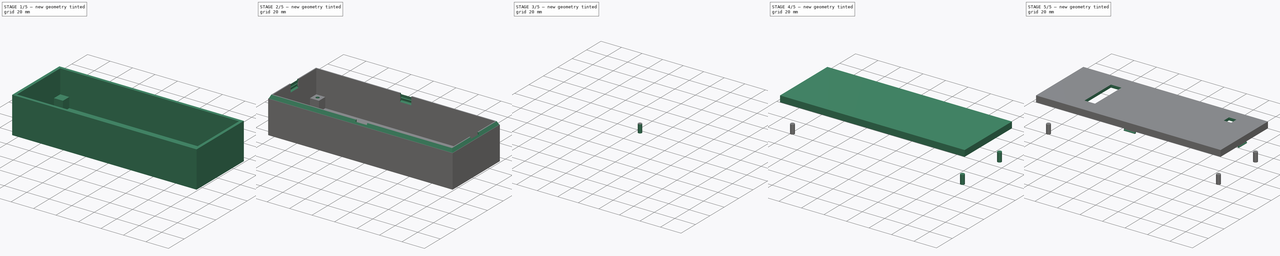
[diagram: build sequence overview — one tinted view per stage of 5, left to right]
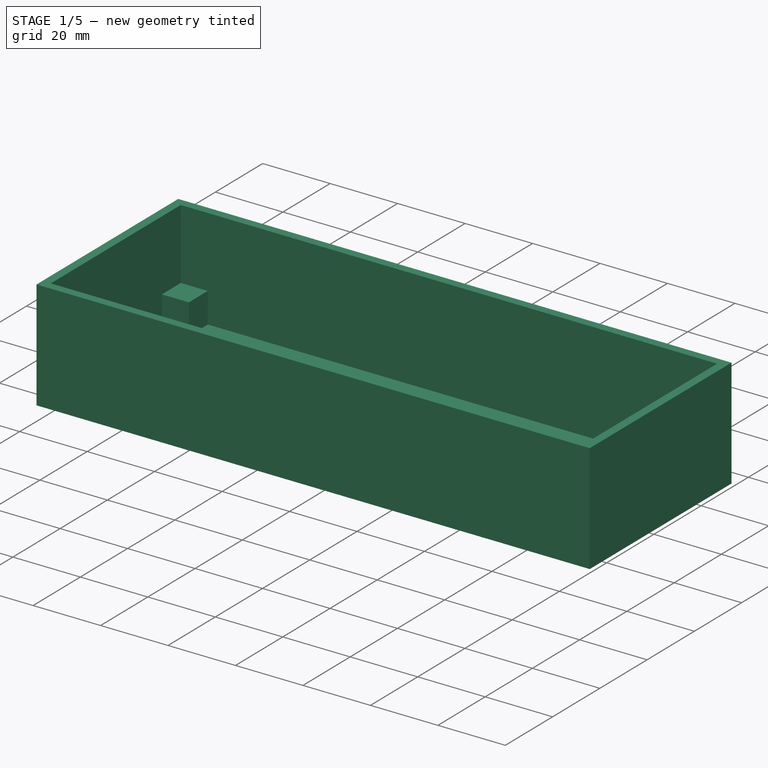
[diagram: stage 1 of 5 — iso view after this stage's code; geometry added in this stage tinted green]
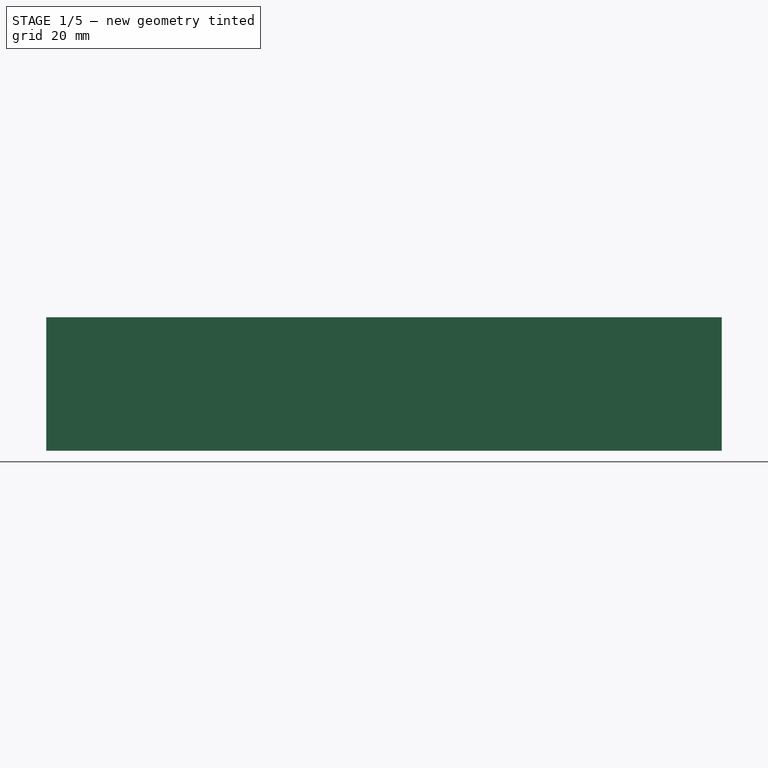
[diagram: stage 1 of 5 — front view after this stage's code; geometry added in this stage tinted green]
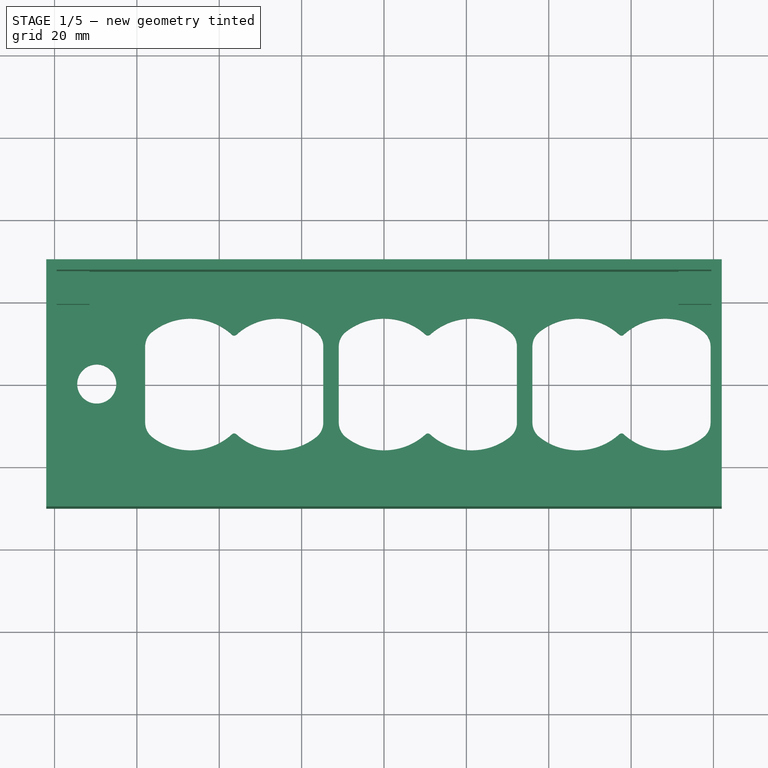
[diagram: stage 1 of 5 — top view after this stage's code; geometry added in this stage tinted green]
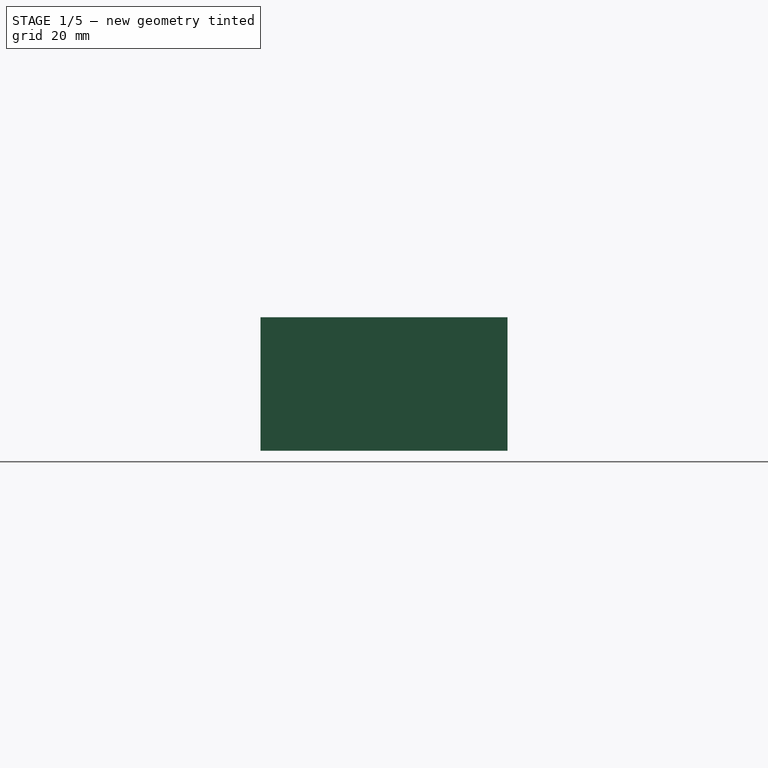
[diagram: stage 1 of 5 — right view after this stage's code; geometry added in this stage tinted green]
FCSTD DOCUMENT  (FreeCAD 0.20R29410 (Git))
Label: advance_case5
License: All rights reserved
LicenseURL: http://en.wikipedia.org/wiki/All_rights_reserved
objects: Sketcher::SketchObject×16, PartDesign::Pocket×10, PartDesign::ShapeBinder×7, PartDesign::Pad×6, Part::FeaturePython×4, PartDesign::Body×2, Part::Feature×1, PartDesign::Plane×1, PartDesign::Fillet×1
note: 65 computed .brp shape members not serialized (recipe doc carries the construction recipe); baked Part::Feature solids carry a one-line shape summary decoded from their .brp

FEATURE [Part::Feature] Feature  label="clock_top"
  shape: bbox 158.1 x 54.08 x 55.5 mm, 23897 faces, 830 solids (baked)
FEATURE [PartDesign::ShapeBinder] ShapeBinder
  Support = -> [Feature]
  TraceSupport = false
FEATURE [PartDesign::ShapeBinder] ShapeBinder001
  Support = -> [Feature]
  TraceSupport = false
FEATURE [PartDesign::ShapeBinder] ShapeBinder002
  Support = -> [Feature]
  TraceSupport = false
FEATURE [Sketcher::SketchObject] Sketch
  ExternalGeometry = -> [ShapeBinder001]
  FullyConstrained = true
  MapMode = 5
  Placement = pos=(0,0,0) rot=(1,0,0;3.14159rad)
  Support = -> [ShapeBinder]
  sketch-geometry (8):
    g0: LineSegment StartX=-79.5 StartY=27.5 StartZ=0 EndX=79.5 EndY=27.5 EndZ=0
    g1: LineSegment StartX=79.5 StartY=27.5 StartZ=0 EndX=79.5 EndY=-27.5 EndZ=0
    g2: LineSegment StartX=79.5 StartY=-27.5 StartZ=0 EndX=-79.5 EndY=-27.5 EndZ=0
    g3: LineSegment StartX=-79.5 StartY=-27.5 StartZ=0 EndX=-79.5 EndY=27.5 EndZ=0
    g4: LineSegment StartX=-82 StartY=30 StartZ=0 EndX=82 EndY=30 EndZ=0
    g5: LineSegment StartX=82 StartY=30 StartZ=0 EndX=82 EndY=-30 EndZ=0
    g6: LineSegment StartX=82 StartY=-30 StartZ=0 EndX=-82 EndY=-30 EndZ=0
    g7: LineSegment StartX=-82 StartY=-30 StartZ=0 EndX=-82 EndY=30 EndZ=0
  constraints (24):
    c: Coincident(g0,g1)
    c: Coincident(g1,g2)
    c: Coincident(g2,g3)
    c: Coincident(g3,g0)
    c: Horizontal(g0)
    c: Horizontal(g2)
    c: Vertical(g1)
    c: Vertical(g3)
    c: Coincident(g4,g5)
    c: Coincident(g5,g6)
    c: Coincident(g6,g7)
    c: Coincident(g7,g4)
    c: Horizontal(g4)
    c: Horizontal(g6)
    c: Vertical(g5)
    c: Vertical(g7)
    c: DistanceX(g0,g-6) = 0.5
    c: DistanceY(g-6,g0) = 0.5
    c: DistanceY(g1,g-4) = 0.5
    c: DistanceX(g-4,g1) = 0.5
    c: DistanceX(g1,g5) = 2.5
    c: DistanceY(g5,g1) = 2.5
    c: DistanceY(g0,g4) = 2.5
    c: DistanceX(g4,g0) = 2.5
FEATURE [PartDesign::Pad] Pad
  Direction = (0,0,-1)
  Length = 9
  Length2 = 20.89
  Profile = -> Sketch
  ReferenceAxis = -> Sketch [N_Axis]
  Type = 4
FEATURE [Sketcher::SketchObject] Sketch001
  ExternalGeometry = -> [Pad]
  FullyConstrained = true
  MapMode = 5
  Placement = pos=(0,0,-9) rot=(1,0,0;3.14159rad)
  Support = -> [Pad]
  sketch-geometry (4):
    g0: LineSegment StartX=-82 StartY=30 StartZ=0 EndX=82 EndY=30 EndZ=0
    g1: LineSegment StartX=82 StartY=30 StartZ=0 EndX=82 EndY=-30 EndZ=0
    g2: LineSegment StartX=82 StartY=-30 StartZ=0 EndX=-82 EndY=-30 EndZ=0
    g3: LineSegment StartX=-82 StartY=-30 StartZ=0 EndX=-82 EndY=30 EndZ=0
  constraints (10):
    c: Coincident(g0,g1)
    c: Coincident(g1,g2)
    c: Coincident(g2,g3)
    c: Coincident(g3,g0)
    c: Horizontal(g0)
    c: Horizontal(g2)
    c: Vertical(g1)
    c: Vertical(g3)
    c: Coincident(g0,g-3)
    c: Coincident(g1,g-4)
FEATURE [PartDesign::Pad] Pad001
  BaseFeature = -> Pad
  Direction = (0,0,-1)
  Length = 2.5
  Length2 = 10
  Profile = -> Sketch001
  ReferenceAxis = -> Sketch001 [N_Axis]
  Type = 0
FEATURE [Sketcher::SketchObject] Sketch002
  ExternalGeometry = -> [ShapeBinder002]
  FullyConstrained = false
  MapMode = 5
  Placement = pos=(0,0,-11.5) rot=(1,0,0;3.14159rad)
  Support = -> [Pad001]
  sketch-geometry (37):
    g0: LineSegment StartX=-58 StartY=9.12121 StartZ=0 EndX=-58 EndY=-9.37121 EndZ=0
    g1: ArcOfCircle CenterX=-53.5 CenterY=9.12121 CenterZ=0 NormalX=0 NormalY=0 NormalZ=1 AngleXU=0 Radius=4.5 StartAngle=2.23833 EndAngle=3.14159
    g2: ArcOfCircle CenterX=-47 CenterY=0.875 CenterZ=0 NormalX=0 NormalY=0 NormalZ=1 AngleXU=0 Radius=15 StartAngle=0.83283 EndAngle=2.23833
    g3: LineSegment StartX=-14.74 StartY=-9.37121 StartZ=0 EndX=-14.74 EndY=9.12121 EndZ=0
    g4: ArcOfCircle CenterX=-19.24 CenterY=9.12121 CenterZ=0 NormalX=0 NormalY=0 NormalZ=1 AngleXU=0 Radius=4.5 StartAngle=0 EndAngle=0.903267
    g5: ArcOfCircle CenterX=-25.74 CenterY=0.875 CenterZ=0 NormalX=0 NormalY=0 NormalZ=1 AngleXU=0 Radius=15 StartAngle=0.903267 EndAngle=2.30876
    g6: ArcOfCircle CenterX=-19.24 CenterY=-9.37121 CenterZ=0 NormalX=0 NormalY=0 NormalZ=1 AngleXU=0 Radius=4.5 StartAngle=5.37992 EndAngle=6.28319
    g7: ArcOfCircle CenterX=-53.5 CenterY=-9.37121 CenterZ=0 NormalX=0 NormalY=0 NormalZ=1 AngleXU=0 Radius=4.5 StartAngle=3.14159 EndAngle=4.04486
    g8: ArcOfCircle CenterX=-47 CenterY=-1.125 CenterZ=0 NormalX=0 NormalY=0 NormalZ=1 AngleXU=0 Radius=15 StartAngle=4.04486 EndAngle=5.45036
    g9: ArcOfCircle CenterX=-25.74 CenterY=-1.125 CenterZ=0 NormalX=0 NormalY=0 NormalZ=1 AngleXU=0 Radius=15 StartAngle=3.97442 EndAngle=5.37992
    g10: LineSegment StartX=-10.98 StartY=9.12121 StartZ=0 EndX=-10.98 EndY=-9.37121 EndZ=0
    g11: LineSegment StartX=32.28 StartY=9.12121 StartZ=0 EndX=32.28 EndY=-9.37121 EndZ=0
    g12: LineSegment StartX=36.04 StartY=9.12121 StartZ=0 EndX=36.04 EndY=-9.37121 EndZ=0
    g13: LineSegment StartX=79.3 StartY=9.12121 StartZ=0 EndX=79.3 EndY=-9.37121 EndZ=0
    g14: ArcOfCircle CenterX=-6.48 CenterY=9.12121 CenterZ=0 NormalX=0 NormalY=0 NormalZ=1 AngleXU=0 Radius=4.5 StartAngle=2.23833 EndAngle=3.14159
    g15: ArcOfCircle CenterX=-6.48 CenterY=-9.37121 CenterZ=0 NormalX=0 NormalY=0 NormalZ=1 AngleXU=0 Radius=4.5 StartAngle=3.14159 EndAngle=4.04486
    g16: ArcOfCircle CenterX=0.02 CenterY=-1.125 CenterZ=0 NormalX=0 NormalY=0 NormalZ=1 AngleXU=0 Radius=15 StartAngle=4.04486 EndAngle=5.45036
    g17: ArcOfCircle CenterX=0.02 CenterY=0.875 CenterZ=0 NormalX=0 NormalY=0 NormalZ=1 AngleXU=0 Radius=15 StartAngle=0.83283 EndAngle=2.23833
    g18: ArcOfCircle CenterX=27.78 CenterY=9.12121 CenterZ=0 NormalX=0 NormalY=0 NormalZ=1 AngleXU=0 Radius=4.5 StartAngle=2e-16 EndAngle=0.903267
    g19: ArcOfCircle CenterX=27.78 CenterY=-9.37121 CenterZ=0 NormalX=0 NormalY=0 NormalZ=1 AngleXU=0 Radius=4.5 StartAngle=5.37992 EndAngle=6.28319
    g20: ArcOfCircle CenterX=21.28 CenterY=0.875 CenterZ=0 NormalX=0 NormalY=0 NormalZ=1 AngleXU=0 Radius=15 StartAngle=0.903267 EndAngle=2.30876
    g21: ArcOfCircle CenterX=21.28 CenterY=-1.125 CenterZ=0 NormalX=0 NormalY=0 NormalZ=1 AngleXU=0 Radius=15 StartAngle=3.97442 EndAngle=5.37992
    g22: ArcOfCircle CenterX=40.54 CenterY=-9.37121 CenterZ=0 NormalX=0 NormalY=0 NormalZ=1 AngleXU=0 Radius=4.5 StartAngle=3.14159 EndAngle=4.04486
    g23: ArcOfCircle CenterX=40.54 CenterY=9.12121 CenterZ=0 NormalX=0 NormalY=0 NormalZ=1 AngleXU=0 Radius=4.5 StartAngle=2.23833 EndAngle=3.14159
    g24: ArcOfCircle CenterX=74.8 CenterY=9.12121 CenterZ=0 NormalX=0 NormalY=0 NormalZ=1 AngleXU=0 Radius=4.5 StartAngle=1e-16 EndAngle=0.903267
    g25: ArcOfCircle CenterX=74.8 CenterY=-9.37121 CenterZ=0 NormalX=0 NormalY=0 NormalZ=1 AngleXU=0 Radius=4.5 StartAngle=5.37992 EndAngle=6.28319
    g26: ArcOfCircle CenterX=47.04 CenterY=0.875 CenterZ=0 NormalX=0 NormalY=0 NormalZ=1 AngleXU=0 Radius=15 StartAngle=0.83283 EndAngle=2.23833
    g27: ArcOfCircle CenterX=47.04 CenterY=-1.125 CenterZ=0 NormalX=0 NormalY=0 NormalZ=1 AngleXU=0 Radius=15 StartAngle=4.04486 EndAngle=5.45036
    g28: ArcOfCircle CenterX=68.3 CenterY=0.875 CenterZ=0 NormalX=0 NormalY=0 NormalZ=1 AngleXU=0 Radius=15 StartAngle=0.903267 EndAngle=2.30876
    g29: ArcOfCircle CenterX=68.3 CenterY=-1.125 CenterZ=0 NormalX=0 NormalY=0 NormalZ=1 AngleXU=0 Radius=15 StartAngle=3.97442 EndAngle=5.37992
    g30: Circle CenterX=-69.75 CenterY=-0.2375 CenterZ=0 NormalX=0 NormalY=0 NormalZ=1 AngleXU=0 Radius=4.75
    g31: ArcOfCircle CenterX=-36.37 CenterY=-12.8144 CenterZ=0 NormalX=0 NormalY=0 NormalZ=1 AngleXU=0 Radius=0.8 StartAngle=0.83283 EndAngle=2.30876
    g32: ArcOfCircle CenterX=-36.37 CenterY=12.5644 CenterZ=0 NormalX=0 NormalY=0 NormalZ=1 AngleXU=0 Radius=0.8 StartAngle=3.97442 EndAngle=5.45036
    g33: ArcOfCircle CenterX=10.65 CenterY=12.5644 CenterZ=0 NormalX=0 NormalY=0 NormalZ=1 AngleXU=0 Radius=0.8 StartAngle=3.97442 EndAngle=5.45036
    g34: ArcOfCircle CenterX=10.65 CenterY=-12.8144 CenterZ=0 NormalX=0 NormalY=0 NormalZ=1 AngleXU=0 Radius=0.8 StartAngle=0.83283 EndAngle=2.30876
    g35: ArcOfCircle CenterX=57.67 CenterY=12.5644 CenterZ=0 NormalX=0 NormalY=0 NormalZ=1 AngleXU=0 Radius=0.8 StartAngle=3.97442 EndAngle=5.45036
    g36: ArcOfCircle CenterX=57.67 CenterY=-12.8144 CenterZ=0 NormalX=0 NormalY=0 NormalZ=1 AngleXU=0 Radius=0.8 StartAngle=0.83283 EndAngle=2.30876
  constraints (104):
    c: Vertical(g0)
    c: DistanceX(g0,g-7) = 0.5
    c: DistanceY(g0,g-7) = 0
    c: DistanceY(g0,g-7) = 0
    c: Coincident(g1,g-6)
    c: Coincident(g1,g0)
    c: Distance(g-6,g1) = 0.5
    c: Coincident(g2,g-5)
    c: Coincident(g2,g1)
    c: Vertical(g3)
    c: DistanceX(g-16,g3) = 0.5
    c: DistanceY(g3,g-16) = 0
    c: DistanceY(g-16,g3) = 0
    c: Coincident(g4,g-15)
    c: Coincident(g4,g3)
    c: Distance(g-17,g4) = 0.5
    c: Coincident(g5,g-19)
    c: Coincident(g5,g4)
    c: Coincident(g6,g-14)
    c: Coincident(g6,g3)
    c: Distance(g-14,g6) = 0.5
    c: Coincident(g7,g-58)
    c: Coincident(g7,g0)
    c: Distance(g-58,g7) = 0.5
    c: Coincident(g8,g-9)
    c: Coincident(g8,g7)
    c: Coincident(g9,g-13)
    c: Coincident(g9,g6)
    c: Vertical(g10)
    c: Vertical(g11)
    c: Vertical(g12)
    c: Vertical(g13)
    c: DistanceX(g10,g-23) = 0.5
    c: DistanceX(g-33,g11) = 0.5
    c: DistanceX(g12,g-57) = 0.5
    c: DistanceX(g-50,g13) = 0.5
    c: DistanceY(g10,g-23) = 0
    c: DistanceY(g-25,g10) = 0
    c: DistanceY(g11,g-32) = 0
    c: DistanceY(g12,g-41) = 0
    c: DistanceY(g-49,g13) = 0
    c: DistanceY(g13,g-50) = 0
    c: DistanceY(g12,g-57) = 0
    c: DistanceY(g-33,g11) = 0
    c: Coincident(g14,g-22)
    c: Coincident(g14,g10)
    c: Distance(g-22,g14) = 0.5
    c: Coincident(g15,g-25)
    c: Coincident(g15,g10)
    c: Distance(g-25,g15) = 0.5
    c: Coincident(g16,g-26)
    c: Coincident(g16,g15)
    c: Coincident(g17,g-38)
    c: Coincident(g17,g14)
    c: Coincident(g18,g-33)
    c: Coincident(g18,g11)
    c: Coincident(g19,g-32)
    c: Coincident(g19,g11)
    c: Distance(g18,g-34) = 0.5
    c: Distance(g19,g-32) = 0.5
    c: Coincident(g20,g-35)
    c: Coincident(g20,g18)
    c: Coincident(g21,g-30)
    c: Coincident(g21,g19)
    c: Coincident(g22,g-41)
    c: Coincident(g22,g12)
    c: Coincident(g23,g-57)
    c: PointOnObject(g23,g12)
    c: Coincident(g24,g-50)
    c: Coincident(g24,g13)
    c: Coincident(g25,g-49)
    c: Coincident(g25,g13)
    c: Distance(g24,g-51) = 0.5
    c: Distance(g25,g-49) = 0.5
    c: Distance(g-41,g22) = 0.5
    c: Distance(g-57,g23) = 0.5
    c: Coincident(g26,g-56)
    c: Coincident(g26,g23)
    c: Coincident(g27,g-42)
    c: Coincident(g27,g22)
    c: Coincident(g28,g-52)
    c: Coincident(g28,g24)
    c: Coincident(g29,g-47)
    c: Coincident(g29,g25)
    c: Coincident(g30,g-60)
    c: Radius(g30) = 4.75
    c: Tangent(g9,g31) = 1.5708
    c: Tangent(g8,g31) = 1.5708
    c: Tangent(g5,g32) = 1.5708
    c: Tangent(g2,g32) = 1.5708
    c: Tangent(g20,g33) = 1.5708
    c: Tangent(g17,g33) = 1.5708
    c: Tangent(g21,g34) = 1.5708
    c: Tangent(g16,g34) = 1.5708
    c: Tangent(g28,g35) = 1.5708
    c: Tangent(g26,g35) = 1.5708
    c: Tangent(g29,g36) = 1.5708
    c: Tangent(g27,g36) = 1.5708
    c: Radius(g36) = 0.8
    c: Radius(g35) = 0.8
    c: Radius(g33) = 0.8
    c: Radius(g34) = 0.8
    c: Radius(g31) = 0.8
    c: Radius(g32) = 0.8
FEATURE [PartDesign::Pocket] Pocket
  BaseFeature = -> Pad001
  Direction = (0,0,1)
  Length = 5
  Length2 = 5
  Profile = -> Sketch002
  ReferenceAxis = -> Sketch002 [N_Axis]
  Type = 0
FEATURE [Sketcher::SketchObject] Sketch003
  ExternalGeometry = -> [ShapeBinder,Pocket]
  FullyConstrained = true
  MapMode = 5
  Placement = pos=(0,0,-9) rot=(0,0,1;0rad)
  Support = -> [Pocket]
  sketch-geometry (16):
    g0: LineSegment StartX=-79.5 StartY=27.5 StartZ=0 EndX=-71.5 EndY=27.5 EndZ=0
    g1: LineSegment StartX=-71.5 StartY=27.5 StartZ=0 EndX=-71.5 EndY=19.5 EndZ=0
    g2: LineSegment StartX=-71.5 StartY=19.5 StartZ=0 EndX=-79.5 EndY=19.5 EndZ=0
    g3: LineSegment StartX=-79.5 StartY=19.5 StartZ=0 EndX=-79.5 EndY=27.5 EndZ=0
    g4: LineSegment StartX=-79.5 StartY=-27.5 StartZ=0 EndX=-71.5 EndY=-27.5 EndZ=0
    g5: LineSegment StartX=-71.5 StartY=-27.5 StartZ=0 EndX=-71.5 EndY=-19.5 EndZ=0
    g6: LineSegment StartX=-71.5 StartY=-19.5 StartZ=0 EndX=-79.5 EndY=-19.5 EndZ=0
    g7: LineSegment StartX=-79.5 StartY=-19.5 StartZ=0 EndX=-79.5 EndY=-27.5 EndZ=0
    g8: LineSegment StartX=79.5 StartY=-27.5 StartZ=0 EndX=71.5 EndY=-27.5 EndZ=0
    g9: LineSegment StartX=71.5 StartY=-27.5 StartZ=0 EndX=71.5 EndY=-19.5 EndZ=0
    g10: LineSegment StartX=71.5 StartY=-19.5 StartZ=0 EndX=79.5 EndY=-19.5 EndZ=0
    g11: LineSegment StartX=79.5 StartY=-19.5 StartZ=0 EndX=79.5 EndY=-27.5 EndZ=0
    g12: LineSegment StartX=79.5 StartY=27.5 StartZ=0 EndX=71.5 EndY=27.5 EndZ=0
    g13: LineSegment StartX=71.5 StartY=27.5 StartZ=0 EndX=71.5 EndY=19.5 EndZ=0
    g14: LineSegment StartX=71.5 StartY=19.5 StartZ=0 EndX=79.5 EndY=19.5 EndZ=0
    g15: LineSegment StartX=79.5 StartY=19.5 StartZ=0 EndX=79.5 EndY=27.5 EndZ=0
  constraints (44):
    c: Coincident(g0,g1)
    c: Coincident(g1,g2)
    c: Coincident(g2,g3)
    c: Coincident(g3,g0)
    c: Horizontal(g0)
    c: Horizontal(g2)
    c: Vertical(g1)
    c: Vertical(g3)
    c: Coincident(g0,g-9)
    c: DistanceY(g1,g1) = 8
    c: DistanceX(g2,g2) = 8
    c: Coincident(g4,g5)
    c: Coincident(g5,g6)
    c: Coincident(g6,g7)
    c: Coincident(g7,g4)
    c: Horizontal(g4)
    c: Horizontal(g6)
    c: Vertical(g5)
    c: Vertical(g7)
    c: Coincident(g4,g-10)
    c: DistanceX(g6,g6) = 8
    c: DistanceY(g5,g5) = 8
    c: Coincident(g8,g9)
    c: Coincident(g9,g10)
    c: Coincident(g10,g11)
    c: Coincident(g11,g8)
    c: Horizontal(g8)
    c: Horizontal(g10)
    c: Vertical(g9)
    c: Vertical(g11)
    c: Coincident(g8,g-11)
    c: DistanceX(g10,g10) = 8
    c: DistanceY(g9,g9) = 8
    c: Coincident(g12,g13)
    c: Coincident(g13,g14)
    c: Coincident(g14,g15)
    c: Coincident(g15,g12)
    c: Horizontal(g12)
    c: Horizontal(g14)
    c: Vertical(g13)
    c: Vertical(g15)
    c: Coincident(g12,g-11)
    c: DistanceY(g13,g13) = 8
    c: DistanceX(g14,g14) = 8
FEATURE [PartDesign::Pad] Pad002
  BaseFeature = -> Pocket
  Direction = (0,0,1)
  Length = 10
  Length2 = 10
  Profile = -> Sketch003
  ReferenceAxis = -> Sketch003 [N_Axis]
  Type = 3
  UpToFace = -> ShapeBinder [Face1]
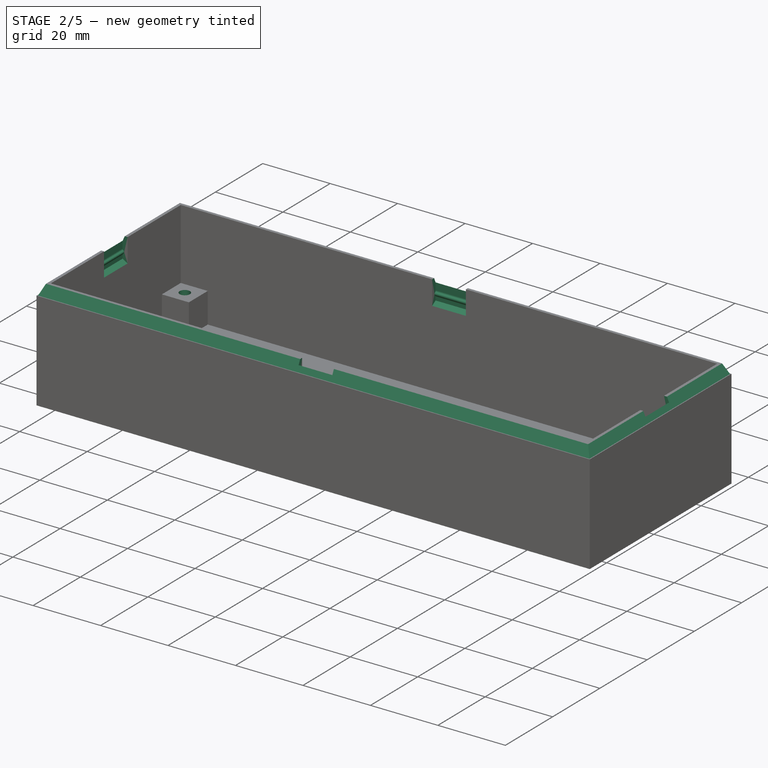
[diagram: stage 2 of 5 — iso view after this stage's code; geometry added in this stage tinted green]
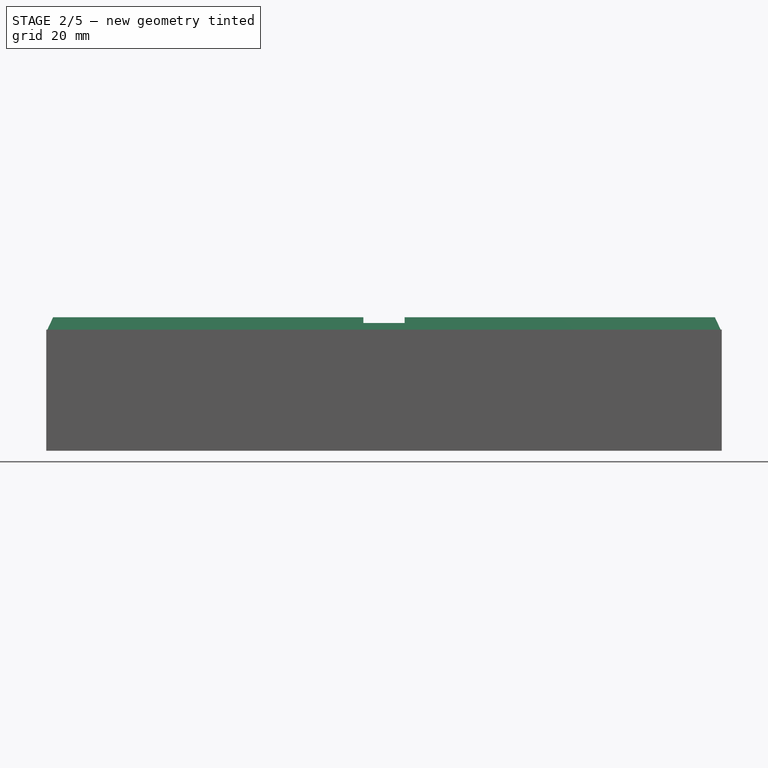
[diagram: stage 2 of 5 — front view after this stage's code; geometry added in this stage tinted green]
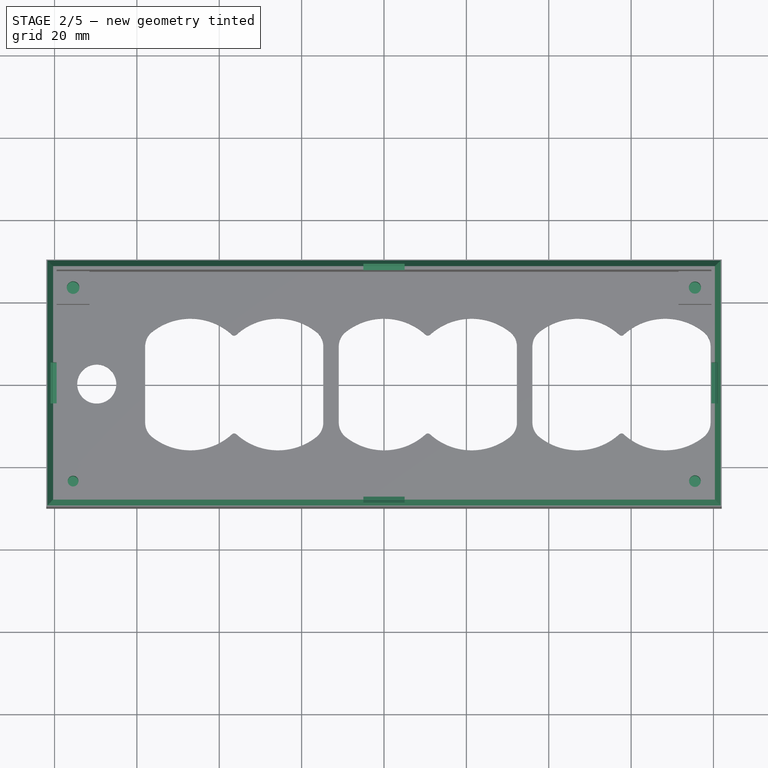
[diagram: stage 2 of 5 — top view after this stage's code; geometry added in this stage tinted green]
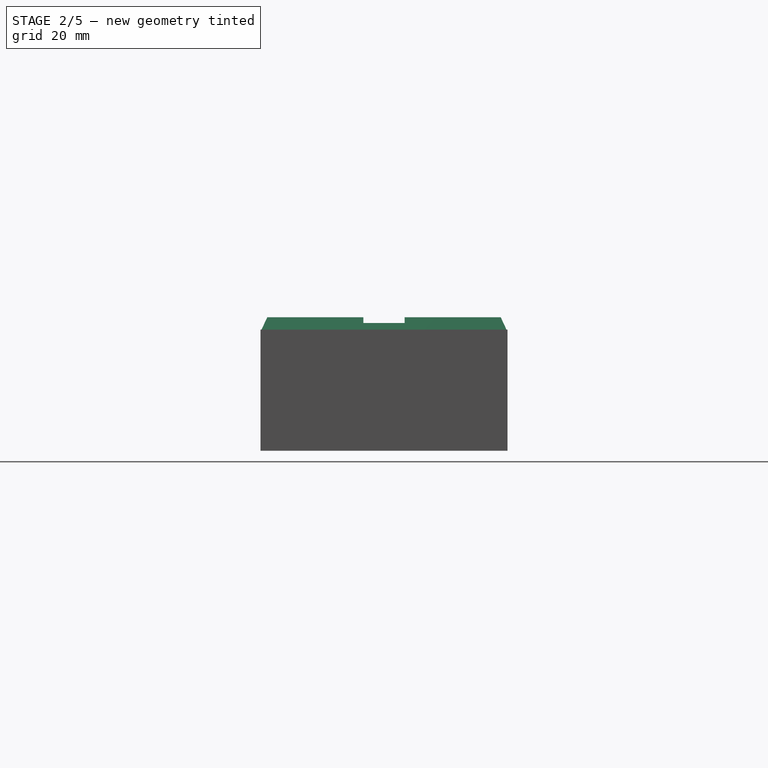
[diagram: stage 2 of 5 — right view after this stage's code; geometry added in this stage tinted green]
FEATURE [Sketcher::SketchObject] Sketch004
  ExternalGeometry = -> [ShapeBinder002]
  FullyConstrained = false
  MapMode = 5
  Support = -> [Pad002]
  sketch-geometry (4):
    g0: Circle CenterX=-75.5 CenterY=23.5 CenterZ=0 NormalX=0 NormalY=0 NormalZ=1 AngleXU=0 Radius=1.53263
    g1: Circle CenterX=-75.5 CenterY=-23.5 CenterZ=0 NormalX=0 NormalY=0 NormalZ=1 AngleXU=0 Radius=1.30398
    g2: Circle CenterX=75.5 CenterY=23.5 CenterZ=0 NormalX=0 NormalY=0 NormalZ=1 AngleXU=0 Radius=1.47817
    g3: Circle CenterX=75.5 CenterY=-23.5 CenterZ=0 NormalX=0 NormalY=0 NormalZ=1 AngleXU=0 Radius=1.41079
  constraints (4):
    c: Coincident(g0,g-3)
    c: Coincident(g1,g-4)
    c: Coincident(g2,g-6)
    c: Coincident(g3,g-5)
FEATURE [PartDesign::Pocket] Pocket001
  BaseFeature = -> Pad002
  Direction = (0,0,-1)
  Length = 9
  Length2 = 5
  Profile = -> Sketch004
  ReferenceAxis = -> Sketch004 [N_Axis]
  Type = 0
FEATURE [Sketcher::SketchObject] Sketch005
  ExternalGeometry = -> [Pocket001]
  FullyConstrained = false
  MapMode = 5
  Placement = pos=(0,0,0) rot=(0.57735,0.57735,0.57735;2.0944rad)
  Support = -> [YZ_Plane]
  sketch-geometry (16):
    g0: LineSegment StartX=27.5 StartY=20.89 StartZ=0 EndX=29 EndY=20.89 EndZ=0
    g1: LineSegment StartX=29 StartY=20.89 StartZ=0 EndX=29 EndY=17.39 EndZ=0
    g2: LineSegment StartX=29 StartY=14.6579 StartZ=0 EndX=27.5 EndY=13.7919 EndZ=0
    g3: LineSegment StartX=27.5 StartY=20.89 StartZ=0 EndX=27.5 EndY=13.7919 EndZ=0
    g4: ArcOfCircle CenterX=29 CenterY=16.524 CenterZ=0 NormalX=0 NormalY=0 NormalZ=1 AngleXU=0 Radius=0.5 StartAngle=2.0944 EndAngle=4.18879
    g5: ArcOfCircle CenterX=28.5 CenterY=15.6579 CenterZ=0 NormalX=0 NormalY=0 NormalZ=1 AngleXU=0 Radius=0.5 StartAngle=-1.95e-14 EndAngle=1.0472
    g6: ArcOfCircle CenterX=28.5 CenterY=17.39 CenterZ=0 NormalX=0 NormalY=0 NormalZ=1 AngleXU=0 Radius=0.5 StartAngle=5.23599 EndAngle=6.28319
    g7: LineSegment StartX=29 StartY=14.6579 StartZ=0 EndX=29 EndY=15.6579 EndZ=0
    g8: LineSegment StartX=-27.5 StartY=20.89 StartZ=0 EndX=-29 EndY=20.89 EndZ=0
    g9: LineSegment StartX=-29 StartY=20.89 StartZ=0 EndX=-29 EndY=17.39 EndZ=0
    g10: LineSegment StartX=-29 StartY=14.6579 StartZ=0 EndX=-27.5 EndY=13.7919 EndZ=0
    g11: LineSegment StartX=-27.5 StartY=20.89 StartZ=0 EndX=-27.5 EndY=13.7919 EndZ=0
    g12: ArcOfCircle CenterX=-29 CenterY=16.524 CenterZ=0 NormalX=0 NormalY=0 NormalZ=1 AngleXU=0 Radius=0.5 StartAngle=5.23599 EndAngle=7.33038
    g13: ArcOfCircle CenterX=-28.5 CenterY=15.6579 CenterZ=0 NormalX=0 NormalY=0 NormalZ=1 AngleXU=0 Radius=0.5 StartAngle=2.0944 EndAngle=3.14159
    g14: ArcOfCircle CenterX=-28.5 CenterY=17.39 CenterZ=0 NormalX=0 NormalY=0 NormalZ=1 AngleXU=0 Radius=0.5 StartAngle=3.14159 EndAngle=4.18879
    g15: LineSegment StartX=-29 StartY=14.6579 StartZ=0 EndX=-29 EndY=15.6579 EndZ=0
  constraints (38):
    c: Horizontal(g0)
    c: DistanceX(g0,g0) = 1.5
    c: Vertical(g1)
    c: Coincident(g1,g0)
    c: Coincident(g-3,g0)
    c: Coincident(g3,g-3)
    c: Vertical(g3)
    c: Coincident(g3,g2)
    c: PointOnObject(g4,g1)
    c: Radius(g4) = 0.5
    c: Tangent(g4,g5) = 1.5708
    c: Tangent(g4,g6) = 1.5708
    c: Tangent(g1,g6) = 1.5708
    c: Radius(g5) = 0.5
    c: Radius(g6) = 0.5
    c: Coincident(g7,g2)
    c: Vertical(g7)
    c: Coincident(g5,g7)
    c: DistanceY(g7,g7) = 1
    c: DistanceY(g1,g1) = 3.5
    c: DistanceX(g0,g5) = 0
    c: Angle(g7,g2) = 2.0944
    c: Horizontal(g8)
    c: Vertical(g9)
    c: Coincident(g9,g8)
    c: Vertical(g11)
    c: Coincident(g11,g10)
    c: PointOnObject(g12,g9)
    c: Radius(g12) = 0.5
    c: Tangent(g12,g13) = 1.5708
    c: Tangent(g12,g14) = 1.5708
    c: Tangent(g9,g14) = -1.5708
    c: Radius(g13) = 0.5
    c: Radius(g14) = 0.5
    c: Coincident(g15,g10)
    c: Vertical(g15)
    c: Coincident(g13,g15)
    c: Angle(g15,g10) = -2.0944
FEATURE [PartDesign::Pocket] Pocket002
  BaseFeature = -> Pocket001
  Direction = (-1,2e-16,-3e-16)
  Length = 5
  Length2 = 5
  Profile = -> Sketch005
  ReferenceAxis = -> Sketch005 [N_Axis]
  Type = 4
FEATURE [Sketcher::SketchObject] Sketch006
  ExternalGeometry = -> [Pocket002]
  FullyConstrained = false
  MapMode = 5
  Placement = pos=(0,0,0) rot=(1,0,0;1.5708rad)
  Support = -> [XZ_Plane]
  sketch-geometry (16):
    g0: LineSegment StartX=-79.5 StartY=20.89 StartZ=0 EndX=-81 EndY=20.89 EndZ=0
    g1: LineSegment StartX=-81 StartY=20.89 StartZ=0 EndX=-81 EndY=17.39 EndZ=0
    g2: ArcOfCircle CenterX=-81.0348 CenterY=16.545 CenterZ=0 NormalX=0 NormalY=0 NormalZ=1 AngleXU=0 Radius=0.5 StartAngle=5.27668 EndAngle=7.28969
    g3: LineSegment StartX=-81 StartY=15.7001 StartZ=0 EndX=-81 EndY=14.7001 EndZ=0
    g4: LineSegment StartX=-79.5 StartY=20.89 StartZ=0 EndX=-79.5 EndY=13.834 EndZ=0
    g5: LineSegment StartX=-81 StartY=14.7001 StartZ=0 EndX=-79.5 EndY=13.834 EndZ=0
    g6: ArcOfCircle CenterX=-80.5 CenterY=15.7001 CenterZ=0 NormalX=0 NormalY=0 NormalZ=1 AngleXU=0 Radius=0.5 StartAngle=2.13509 EndAngle=3.14159
    g7: ArcOfCircle CenterX=-80.5 CenterY=17.39 CenterZ=0 NormalX=0 NormalY=0 NormalZ=1 AngleXU=0 Radius=0.5 StartAngle=3.14159 EndAngle=4.1481
    g8: LineSegment StartX=79.5 StartY=20.89 StartZ=0 EndX=81 EndY=20.89 EndZ=0
    g9: LineSegment StartX=81 StartY=20.89 StartZ=0 EndX=81 EndY=17.39 EndZ=0
    g10: ArcOfCircle CenterX=81.0348 CenterY=16.545 CenterZ=0 NormalX=0 NormalY=0 NormalZ=1 AngleXU=0 Radius=0.5 StartAngle=2.13509 EndAngle=4.1481
    g11: LineSegment StartX=81 StartY=15.7001 StartZ=0 EndX=81 EndY=14.7001 EndZ=0
    g12: LineSegment StartX=79.5 StartY=20.89 StartZ=0 EndX=79.5 EndY=13.834 EndZ=0
    g13: LineSegment StartX=81 StartY=14.7001 StartZ=0 EndX=79.5 EndY=13.834 EndZ=0
    g14: ArcOfCircle CenterX=80.5 CenterY=15.7001 CenterZ=0 NormalX=0 NormalY=0 NormalZ=1 AngleXU=0 Radius=0.5 StartAngle=0 EndAngle=1.00651
    g15: ArcOfCircle CenterX=80.5 CenterY=17.39 CenterZ=0 NormalX=0 NormalY=0 NormalZ=1 AngleXU=0 Radius=0.5 StartAngle=5.27668 EndAngle=6.28319
  constraints (36):
    c: Coincident(g0,g-3)
    c: PointOnObject(g0,g-4)
    c: DistanceX(g0,g0) = 1.5
    c: Coincident(g1,g0)
    c: Vertical(g1)
    c: Vertical(g3)
    c: Coincident(g4,g0)
    c: Vertical(g4)
    c: Coincident(g5,g3)
    c: Coincident(g5,g4)
    c: Tangent(g3,g6) = -1.5708
    c: Tangent(g2,g6) = 1.5708
    c: Tangent(g1,g7) = -1.5708
    c: Tangent(g2,g7) = 1.5708
    c: DistanceY(g1,g1) = 3.5
    c: DistanceY(g3,g3) = 1
    c: Radius(g2) = 0.5
    c: Radius(g6) = 0.5
    c: Radius(g7) = 0.5
    c: Angle(g5,g3) = 2.0944
    c: DistanceX(g3,g1) = 0
    c: Coincident(g9,g8)
    c: Vertical(g9)
    c: Vertical(g11)
    c: Coincident(g12,g8)
    c: Vertical(g12)
    c: Coincident(g13,g11)
    c: Coincident(g13,g12)
    c: Tangent(g11,g14) = 1.5708
    c: Tangent(g10,g14) = 1.5708
    c: Tangent(g9,g15) = 1.5708
    c: Tangent(g10,g15) = 1.5708
    c: Radius(g10) = 0.5
    c: Radius(g14) = 0.5
    c: Radius(g15) = 0.5
    c: Angle(g13,g11) = -2.0944
FEATURE [PartDesign::Pocket] Pocket003
  BaseFeature = -> Pocket002
  Direction = (0,1,2e-16)
  Length = 5
  Length2 = 5
  Profile = -> Sketch006
  ReferenceAxis = -> Sketch006 [N_Axis]
  Type = 4
FEATURE [PartDesign::Plane] DatumPlane
  AttachmentOffset = pos=(0,0,-3) rot=(0,0,1;0rad)
  Length = 183.839
  MapMode = 5
  Placement = pos=(0,0,17.89) rot=(0,0,1;0rad)
  ResizeMode = 0
  Support = -> [Pocket003]
  Width = 79.8394
FEATURE [Sketcher::SketchObject] Sketch007
  ExternalGeometry = -> [Pocket003]
  FullyConstrained = true
  MapMode = 5
  Placement = pos=(0,0,17.89) rot=(0,0,1;0rad)
  Support = -> [DatumPlane]
  sketch-geometry (8):
    g0: LineSegment StartX=-82 StartY=30 StartZ=0 EndX=82 EndY=30 EndZ=0
    g1: LineSegment StartX=82 StartY=30 StartZ=0 EndX=82 EndY=-30 EndZ=0
    g2: LineSegment StartX=82 StartY=-30 StartZ=0 EndX=-82 EndY=-30 EndZ=0
    g3: LineSegment StartX=-82 StartY=-30 StartZ=0 EndX=-82 EndY=30 EndZ=0
    g4: LineSegment StartX=-81.75 StartY=29.75 StartZ=0 EndX=81.75 EndY=29.75 EndZ=0
    g5: LineSegment StartX=81.75 StartY=29.75 StartZ=0 EndX=81.75 EndY=-29.75 EndZ=0
    g6: LineSegment StartX=81.75 StartY=-29.75 StartZ=0 EndX=-81.75 EndY=-29.75 EndZ=0
    g7: LineSegment StartX=-81.75 StartY=-29.75 StartZ=0 EndX=-81.75 EndY=29.75 EndZ=0
  constraints (22):
    c: Coincident(g0,g1)
    c: Coincident(g1,g2)
    c: Coincident(g2,g3)
    c: Coincident(g3,g0)
    c: Horizontal(g0)
    c: Horizontal(g2)
    c: Vertical(g1)
    c: Vertical(g3)
    c: Coincident(g0,g-4)
    c: Coincident(g1,g-6)
    c: Coincident(g4,g5)
    c: Coincident(g5,g6)
    c: Coincident(g6,g7)
    c: Coincident(g7,g4)
    c: Horizontal(g4)
    c: Horizontal(g6)
    c: Vertical(g5)
    c: Vertical(g7)
    c: DistanceY(g4,g0) = 0.25
    c: DistanceX(g0,g4) = 0.25
    c: DistanceX(g5,g1) = 0.25
    c: DistanceY(g1,g5) = 0.25
FEATURE [PartDesign::Pocket] Pocket004
  BaseFeature = -> Pocket003
  Direction = (0,0,-1)
  Length = 5
  Length2 = 5
  Profile = -> Sketch007
  ReferenceAxis = -> Sketch007 [N_Axis]
  Reversed = true
  TaperAngle = 25
  Type = 0
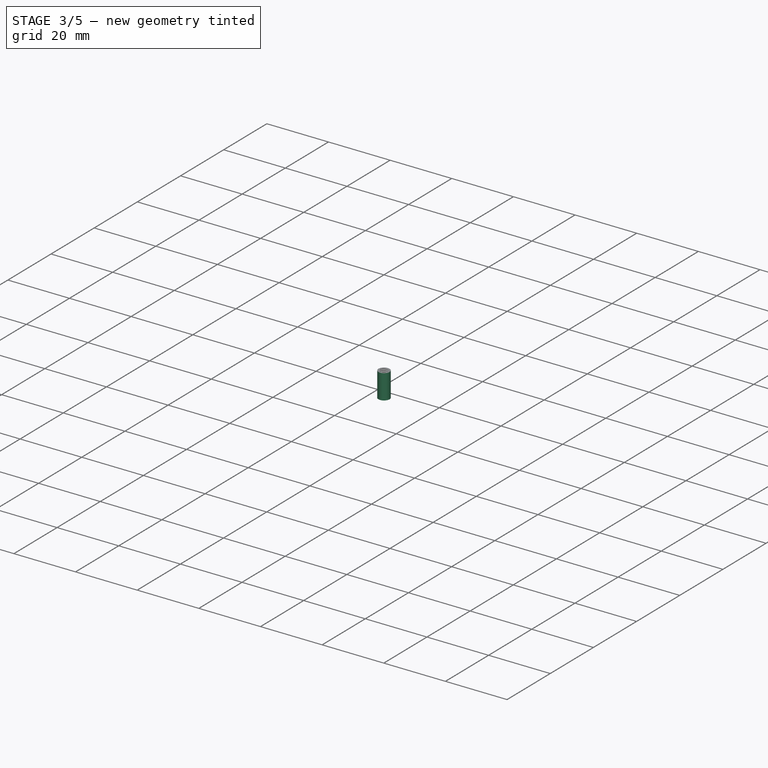
[diagram: stage 3 of 5 — iso view after this stage's code; geometry added in this stage tinted green]
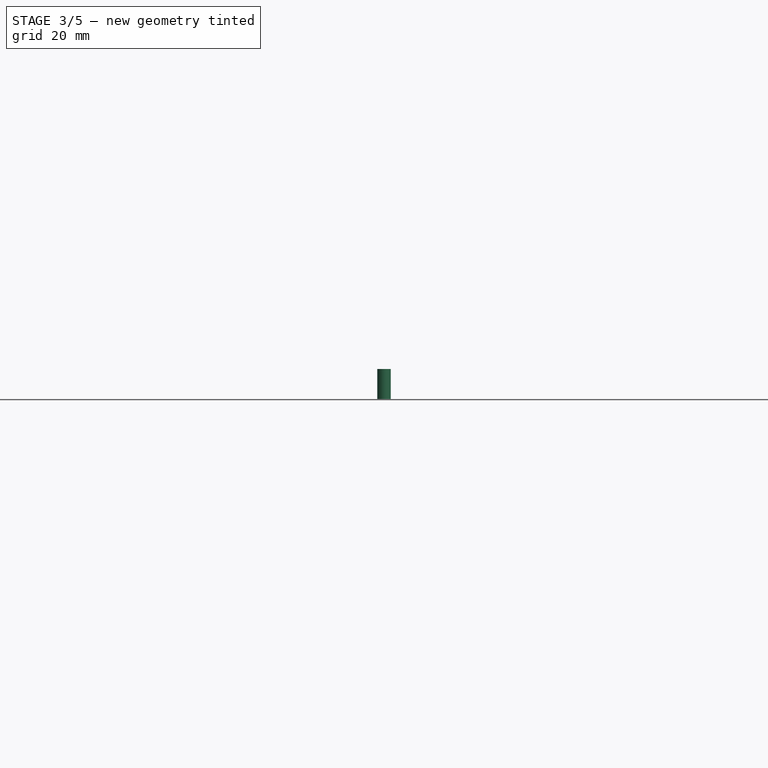
[diagram: stage 3 of 5 — front view after this stage's code; geometry added in this stage tinted green]
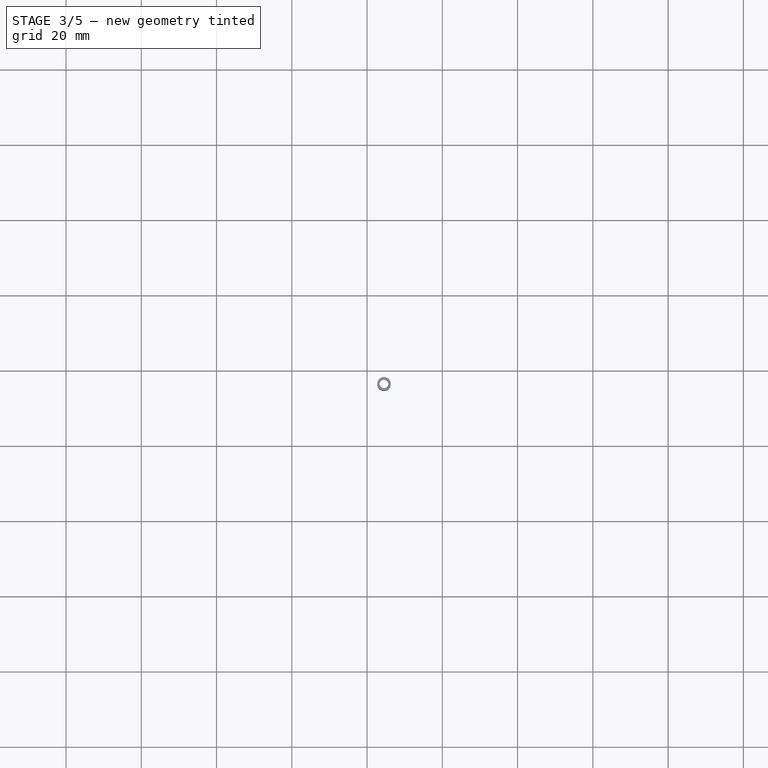
[diagram: stage 3 of 5 — top view after this stage's code; geometry added in this stage tinted green]
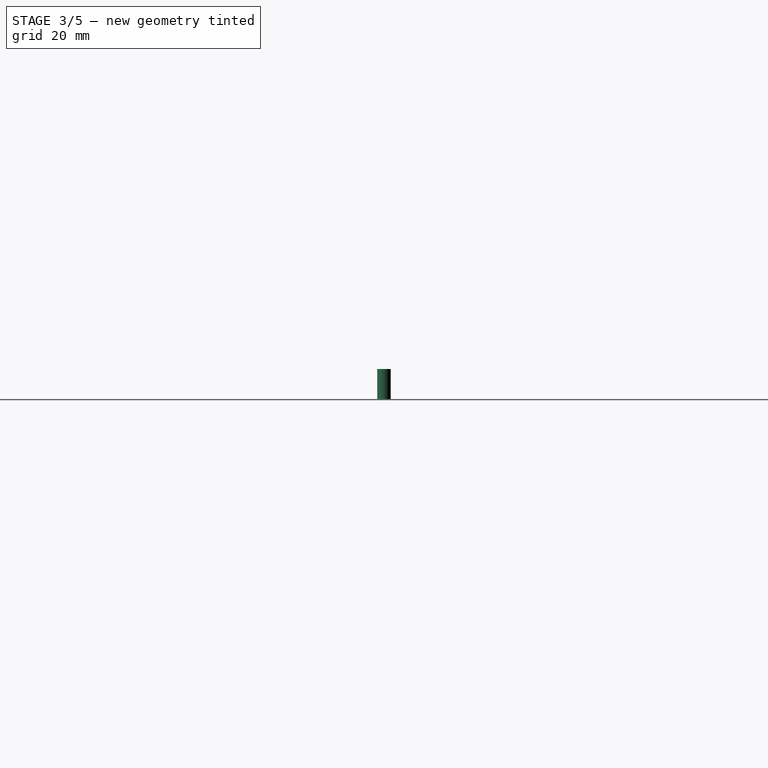
[diagram: stage 3 of 5 — right view after this stage's code; geometry added in this stage tinted green]
FEATURE [PartDesign::Body] Body001  label="back_cover"
  Group = -> [ShapeBinder003,ShapeBinder004,Sketch008,Pad003,Sketch009,Pocket005,ShapeBinder005,Sketch010,Pad004,Sketch011,Pad005,ShapeBinder006,Sketch012,Pocket006]
  Origin = -> Origin001
  Tip = -> Pocket006
FEATURE [PartDesign::Fillet] Fillet
  Base = -> Pocket004 [Edge48,Edge45,Edge16,Edge47]
  BaseFeature = -> Pocket004
  Radius = 1
  SupportTransform = false
  UseAllEdges = false
FEATURE [Sketcher::SketchObject] Sketch013
  ExternalGeometry = -> [ShapeBinder002]
  FullyConstrained = true
  MapMode = 5
  Placement = pos=(-82,0,0) rot=(0.57735,-0.57735,-0.57735;2.0944rad)
  Support = -> [Fillet]
  sketch-geometry (8):
    g0: LineSegment StartX=8.34 StartY=12.54 StartZ=0 EndX=14.72 EndY=12.54 EndZ=0
    g1: LineSegment StartX=8.34 StartY=9.18 StartZ=0 EndX=14.72 EndY=9.18 EndZ=0
    g2: ArcOfCircle CenterX=8.34 CenterY=11.16 CenterZ=0 NormalX=0 NormalY=0 NormalZ=1 AngleXU=0 Radius=1.38 StartAngle=1.5708 EndAngle=3.14159
    g3: ArcOfCircle CenterX=8.34 CenterY=10.56 CenterZ=0 NormalX=0 NormalY=0 NormalZ=1 AngleXU=0 Radius=1.38 StartAngle=3.14159 EndAngle=4.71239
    g4: ArcOfCircle CenterX=14.72 CenterY=11.16 CenterZ=0 NormalX=0 NormalY=0 NormalZ=1 AngleXU=0 Radius=1.38 StartAngle=6.28319 EndAngle=7.85398
    g5: ArcOfCircle CenterX=14.72 CenterY=10.56 CenterZ=0 NormalX=0 NormalY=0 NormalZ=1 AngleXU=0 Radius=1.38 StartAngle=4.71239 EndAngle=6.28319
    g6: LineSegment StartX=6.96 StartY=11.16 StartZ=0 EndX=6.96 EndY=10.56 EndZ=0
    g7: LineSegment StartX=16.1 StartY=11.16 StartZ=0 EndX=16.1 EndY=10.56 EndZ=0
  constraints (24):
    c: Horizontal(g0)
    c: DistanceY(g-12,g0) = 0.1
    c: Horizontal(g1)
    c: DistanceY(g1,g-10) = 0.1
    c: DistanceX(g0,g-12) = 0
    c: DistanceX(g1,g-10) = 0
    c: DistanceX(g-8,g1) = 0
    c: DistanceX(g0,g-5) = 0
    c: Coincident(g2,g-12)
    c: Coincident(g2,g0)
    c: Coincident(g3,g-9)
    c: Coincident(g3,g1)
    c: Coincident(g4,g-5)
    c: Coincident(g4,g0)
    c: Coincident(g5,g-7)
    c: Coincident(g5,g1)
    c: Vertical(g6)
    c: Vertical(g7)
    c: DistanceX(g-6,g7) = 0.1
    c: Coincident(g7,g4)
    c: Coincident(g7,g5)
    c: DistanceX(g6,g-12) = 0.1
    c: Coincident(g2,g6)
    c: Coincident(g6,g3)
FEATURE [PartDesign::Pocket] Pocket007
  BaseFeature = -> Fillet
  Direction = (1,0,0)
  Length = 5
  Length2 = 5
  Profile = -> Sketch013
  ReferenceAxis = -> Sketch013 [N_Axis]
  Type = 2
FEATURE [Sketcher::SketchObject] Sketch014
  ExternalGeometry = -> [Pocket007]
  FullyConstrained = false
  MapMode = 5
  Placement = pos=(-82,0,0) rot=(0.57735,-0.57735,-0.57735;2.0944rad)
  Support = -> [Pocket007]
  sketch-geometry (8):
    g0: LineSegment StartX=8.34 StartY=14.86 StartZ=0 EndX=14.72 EndY=14.86 EndZ=0
    g1: LineSegment StartX=8.29614 StartY=6.86 StartZ=0 EndX=14.72 EndY=6.86 EndZ=0
    g2: ArcOfCircle CenterX=14.72 CenterY=11.16 CenterZ=0 NormalX=0 NormalY=0 NormalZ=1 AngleXU=0 Radius=3.7 StartAngle=-7.46e-14 EndAngle=1.5708
    g3: ArcOfCircle CenterX=14.72 CenterY=10.56 CenterZ=0 NormalX=0 NormalY=0 NormalZ=1 AngleXU=0 Radius=3.7 StartAngle=4.71239 EndAngle=6.28319
    g4: ArcOfCircle CenterX=8.34 CenterY=11.16 CenterZ=0 NormalX=0 NormalY=0 NormalZ=1 AngleXU=0 Radius=3.7 StartAngle=1.5708 EndAngle=3.14159
    g5: ArcOfCircle CenterX=8.34 CenterY=10.56 CenterZ=0 NormalX=0 NormalY=0 NormalZ=1 AngleXU=0 Radius=3.70026 StartAngle=3.12974 EndAngle=4.70054
    g6: LineSegment StartX=4.64 StartY=11.16 StartZ=0 EndX=4.64 EndY=10.6039 EndZ=0
    g7: LineSegment StartX=18.42 StartY=11.16 StartZ=0 EndX=18.42 EndY=10.56 EndZ=0
  constraints (21):
    c: Horizontal(g0)
    c: Horizontal(g1)
    c: DistanceY(g-4,g0) = 3.7
    c: DistanceY(g1,g-6) = 3.7
    c: DistanceX(g0,g-4) = 0
    c: DistanceX(g-7,g0) = 0
    c: DistanceX(g-9,g1) = 0
    c: Coincident(g2,g-7)
    c: Coincident(g2,g0)
    c: Coincident(g3,g-9)
    c: Coincident(g3,g1)
    c: Coincident(g4,g-4)
    c: Coincident(g4,g0)
    c: Coincident(g5,g-6)
    c: Coincident(g5,g1)
    c: Vertical(g6)
    c: Vertical(g7)
    c: Coincident(g6,g4)
    c: Coincident(g6,g5)
    c: Coincident(g7,g2)
    c: Coincident(g7,g3)
FEATURE [PartDesign::Pocket] Pocket008
  BaseFeature = -> Pocket007
  Direction = (1,0,0)
  Length = 1
  Length2 = 5
  Profile = -> Sketch014
  ReferenceAxis = -> Sketch014 [N_Axis]
  Type = 0
FEATURE [Sketcher::SketchObject] Sketch015
  ExternalGeometry = -> [ShapeBinder002]
  FullyConstrained = true
  MapMode = 5
  Placement = pos=(0,0,-9) rot=(0,0,1;0rad)
  Support = -> [Pocket008]
  sketch-geometry (1):
    g0: Circle CenterX=-69.75 CenterY=-8.7625 CenterZ=0 NormalX=0 NormalY=0 NormalZ=1 AngleXU=0 Radius=2.5
  constraints (2):
    c: Coincident(g0,g-3)
    c: Radius(g0) = 2.5
FEATURE [PartDesign::Pocket] Pocket009
  BaseFeature = -> Pocket008
  Direction = (0,0,-1)
  Length = 2
  Length2 = 5
  Profile = -> Sketch015
  ReferenceAxis = -> Sketch015 [N_Axis]
  Type = 0
FEATURE [PartDesign::Body] Body  label="main_case"
  Group = -> [ShapeBinder,ShapeBinder001,ShapeBinder002,Sketch,Pad,Sketch001,Pad001,Sketch002,Pocket,Sketch003,Pad002,Sketch004,Pocket001,Sketch005,Pocket002,Sketch006,Pocket003,DatumPlane,Sketch007,Pocket004,Fillet,Sketch013,Pocket007,Sketch014,Pocket008,Sketch015,Pocket009]
  Origin = -> Origin
  Tip = -> Pocket009
FEATURE [Part::FeaturePython] ScrewTap003  label="M3x8-ScrewTap"  # Fasteners workbench fastener (typed FeaturePython)
  Placement = pos=(-75.5,-23.5,0) rot=(0,0,1;0rad)
  baseObject = -> Body [Edge360]
  diameter = 4
  diameterCustom = 3
  invert = false
  leftHanded = false
  length = 8
  matchOuter = false
  offset = 0
  pitchCustom = 0.5
  thread = true
  type = 0
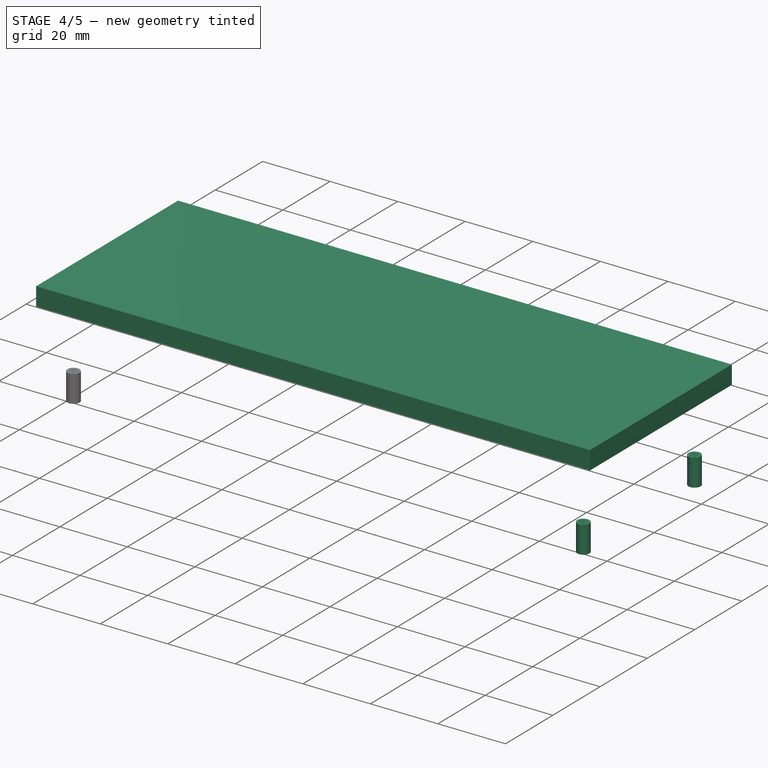
[diagram: stage 4 of 5 — iso view after this stage's code; geometry added in this stage tinted green]
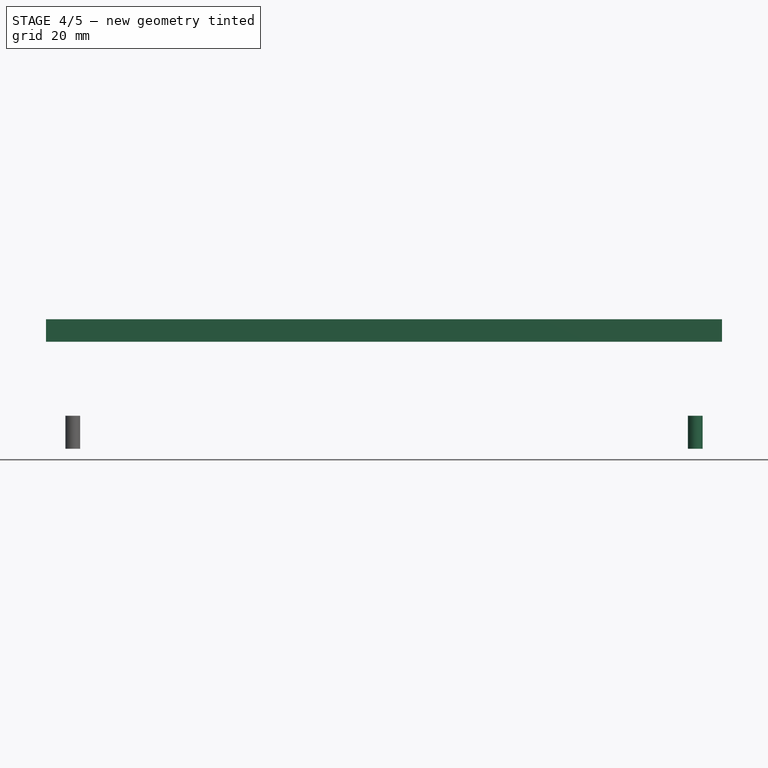
[diagram: stage 4 of 5 — front view after this stage's code; geometry added in this stage tinted green]
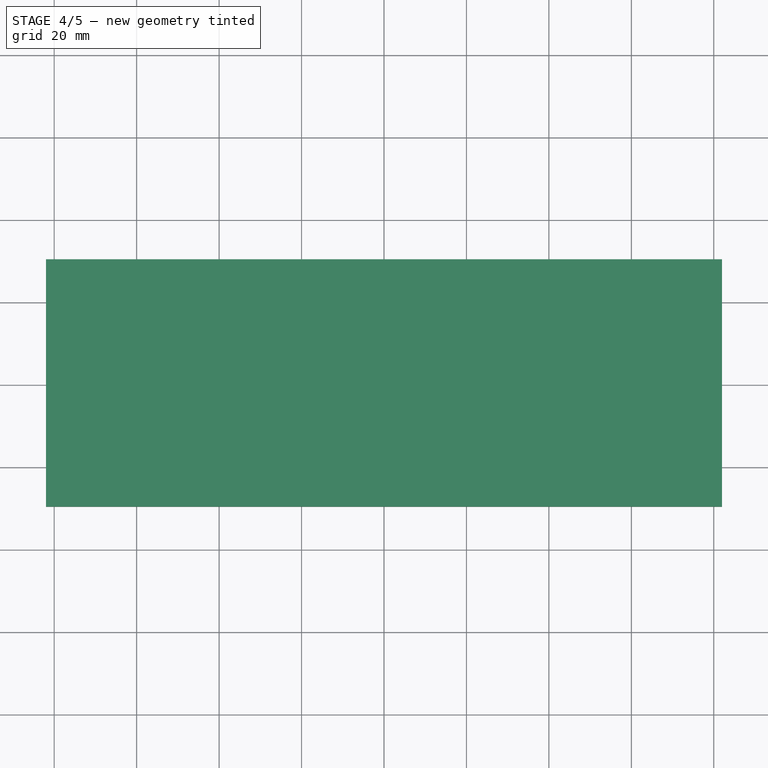
[diagram: stage 4 of 5 — top view after this stage's code; geometry added in this stage tinted green]
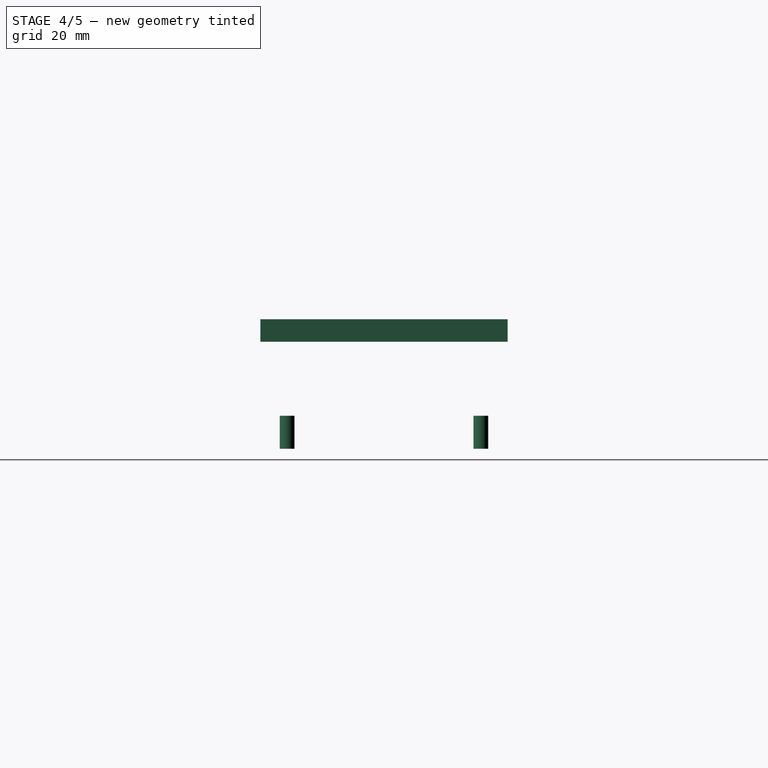
[diagram: stage 4 of 5 — right view after this stage's code; geometry added in this stage tinted green]
FEATURE [PartDesign::ShapeBinder] ShapeBinder003
  Support = -> [Pocket004]
  TraceSupport = false
FEATURE [PartDesign::ShapeBinder] ShapeBinder004
  Support = -> [Pocket004]
  TraceSupport = false
FEATURE [Sketcher::SketchObject] Sketch008
  ExternalGeometry = -> [ShapeBinder004]
  FullyConstrained = true
  MapMode = 5
  Placement = pos=(0,0,20.89) rot=(0,0,1;0rad)
  Support = -> [ShapeBinder003]
  sketch-geometry (4):
    g0: LineSegment StartX=-82 StartY=30 StartZ=0 EndX=82 EndY=30 EndZ=0
    g1: LineSegment StartX=82 StartY=30 StartZ=0 EndX=82 EndY=-30 EndZ=0
    g2: LineSegment StartX=82 StartY=-30 StartZ=0 EndX=-82 EndY=-30 EndZ=0
    g3: LineSegment StartX=-82 StartY=-30 StartZ=0 EndX=-82 EndY=30 EndZ=0
  constraints (10):
    c: Coincident(g0,g1)
    c: Coincident(g1,g2)
    c: Coincident(g2,g3)
    c: Coincident(g3,g0)
    c: Horizontal(g0)
    c: Horizontal(g2)
    c: Vertical(g1)
    c: Vertical(g3)
    c: Coincident(g0,g-6)
    c: Coincident(g1,g-5)
FEATURE [PartDesign::Pad] Pad003
  Direction = (0,0,1)
  Length = 2.5
  Length2 = 2.95
  Profile = -> Sketch008
  ReferenceAxis = -> Sketch008 [N_Axis]
  Type = 4
FEATURE [Part::FeaturePython] ScrewTap001  label="M3x8-ScrewDie"  # Fasteners workbench fastener (typed FeaturePython)
  Placement = pos=(75.5,-23.5,0) rot=(0,0,1;0rad)
  baseObject = -> Body [Edge290]
  diameter = 4
  diameterCustom = 3
  invert = false
  leftHanded = false
  length = 8
  matchOuter = false
  offset = 0
  pitchCustom = 0.5
  thread = true
  type = 0
FEATURE [Part::FeaturePython] ScrewTap  label="M3x8-ScrewDie025"  # Fasteners workbench fastener (typed FeaturePython)
  Placement = pos=(75.5,23.5,0) rot=(0,0,1;0rad)
  baseObject = -> Body [Edge357]
  diameter = 4
  diameterCustom = 3
  invert = false
  leftHanded = false
  length = 8
  matchOuter = false
  offset = 0
  pitchCustom = 0.5
  thread = true
  type = 0
FEATURE [Part::FeaturePython] ScrewTap002  label="M3x8-ScrewDie026"  # Fasteners workbench fastener (typed FeaturePython)
  Placement = pos=(-75.5,23.5,0) rot=(0,0,1;0rad)
  baseObject = -> Body [Edge356]
  diameter = 4
  diameterCustom = 3
  invert = false
  leftHanded = false
  length = 8
  matchOuter = false
  offset = 0
  pitchCustom = 0.5
  thread = true
  type = 0
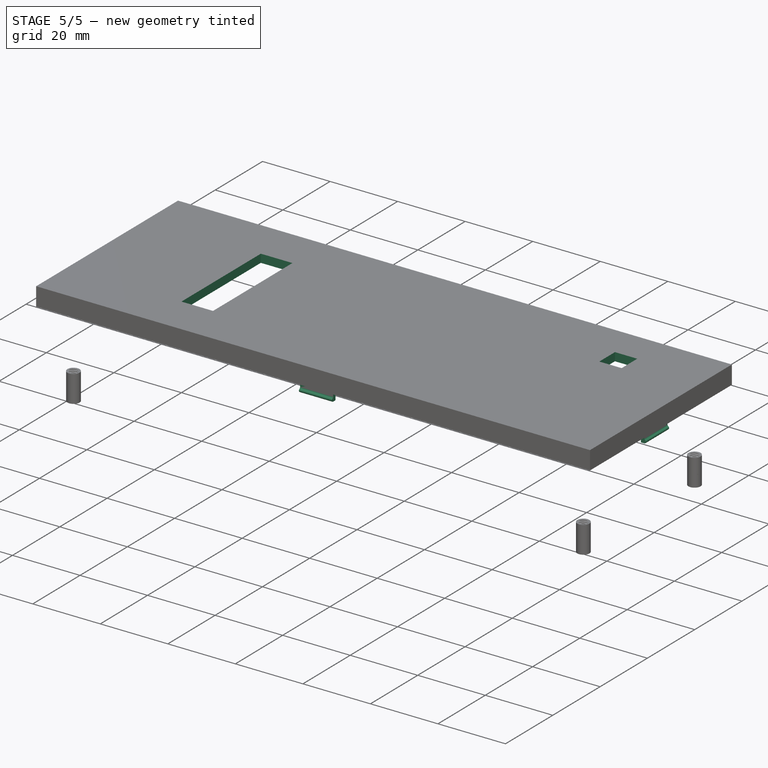
[diagram: stage 5 of 5 — iso view after this stage's code; geometry added in this stage tinted green]
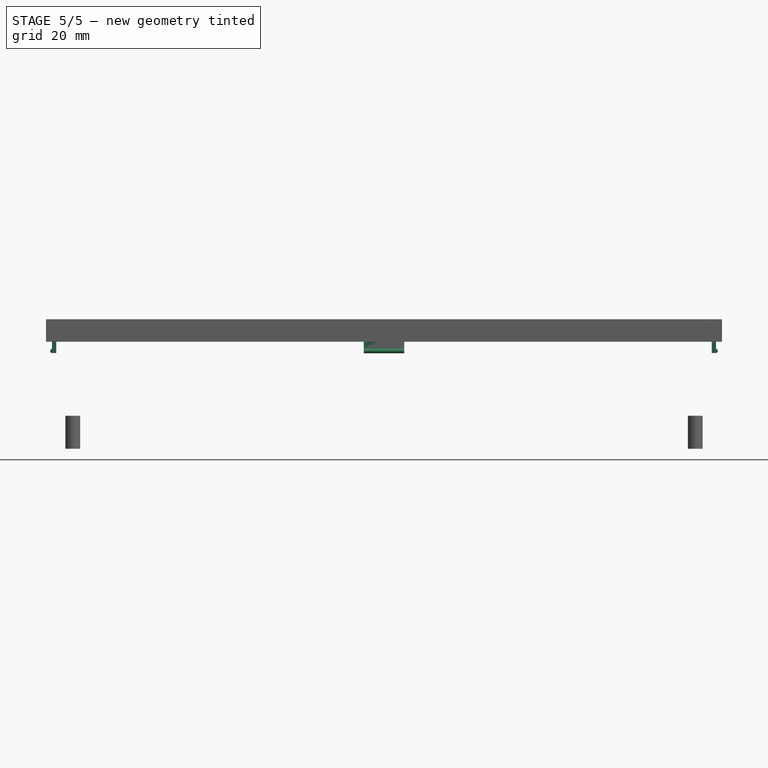
[diagram: stage 5 of 5 — front view after this stage's code; geometry added in this stage tinted green]
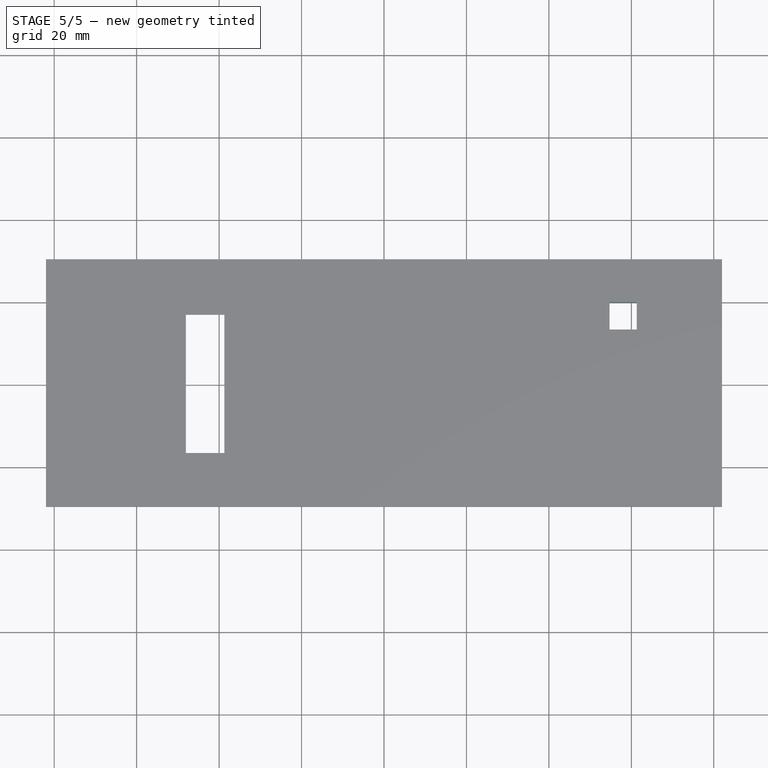
[diagram: stage 5 of 5 — top view after this stage's code; geometry added in this stage tinted green]
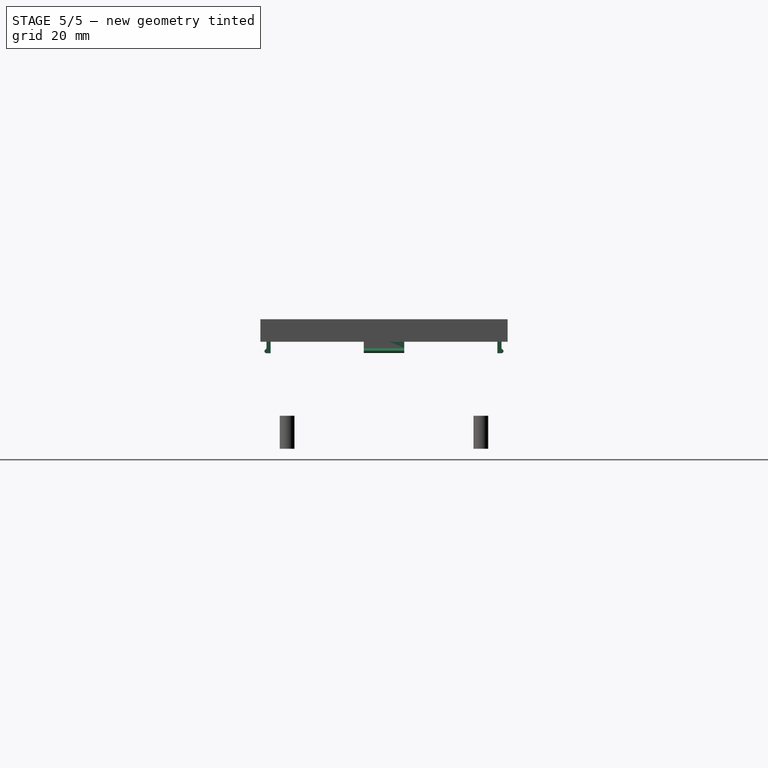
[diagram: stage 5 of 5 — right view after this stage's code; geometry added in this stage tinted green]
FEATURE [Sketcher::SketchObject] Sketch009
  ExternalGeometry = -> [ShapeBinder004]
  FullyConstrained = true
  MapMode = 5
  Placement = pos=(0,0,17.94) rot=(1,0,0;3.14159rad)
  Support = -> [Pad003]
  sketch-geometry (4):
    g0: LineSegment StartX=-81.76 StartY=29.76 StartZ=0 EndX=81.76 EndY=29.76 EndZ=0
    g1: LineSegment StartX=81.76 StartY=29.76 StartZ=0 EndX=81.76 EndY=-29.76 EndZ=0
    g2: LineSegment StartX=81.76 StartY=-29.76 StartZ=0 EndX=-81.76 EndY=-29.76 EndZ=0
    g3: LineSegment StartX=-81.76 StartY=-29.76 StartZ=0 EndX=-81.76 EndY=29.76 EndZ=0
  constraints (12):
    c: Coincident(g0,g1)
    c: Coincident(g1,g2)
    c: Coincident(g2,g3)
    c: Coincident(g3,g0)
    c: Horizontal(g0)
    c: Horizontal(g2)
    c: Vertical(g1)
    c: Vertical(g3)
    c: DistanceX(g-4,g0) = 0.24
    c: DistanceY(g0,g-4) = 0.24
    c: DistanceY(g-6,g1) = 0.24
    c: DistanceX(g1,g-6) = 0.24
FEATURE [PartDesign::Pocket] Pocket005
  BaseFeature = -> Pad003
  Direction = (0,0,1)
  Length = 3
  Length2 = 5
  Profile = -> Sketch009
  ReferenceAxis = -> Sketch009 [N_Axis]
  TaperAngle = -25
  Type = 0
FEATURE [PartDesign::ShapeBinder] ShapeBinder005
  Support = -> [Pocket004]
  TraceSupport = false
FEATURE [Sketcher::SketchObject] Sketch010
  ExternalGeometry = -> [ShapeBinder005,Pocket005]
  FullyConstrained = false
  MapMode = 5
  Placement = pos=(0,0,0) rot=(0.57735,0.57735,0.57735;2.0944rad)
  Support = -> [YZ_Plane001]
  sketch-geometry (12):
    g0: LineSegment StartX=-27.5 StartY=20.94 StartZ=0 EndX=-28.5 EndY=20.94 EndZ=0
    g1: LineSegment StartX=-28.5 StartY=20.94 StartZ=0 EndX=-28.5 EndY=16.424 EndZ=0
    g2: ArcOfCircle CenterX=-29 CenterY=16.524 CenterZ=0 NormalX=0 NormalY=0 NormalZ=1 AngleXU=0 Radius=0.509902 StartAngle=5.23601 EndAngle=6.08579
    g3: ArcOfCircle CenterX=-28.5 CenterY=15.6579 CenterZ=0 NormalX=0 NormalY=0 NormalZ=1 AngleXU=0 Radius=0.490098 StartAngle=2.09438 EndAngle=4.71818
    g4: LineSegment StartX=-28.4972 StartY=15.1679 StartZ=0 EndX=-27.5 EndY=15.1679 EndZ=0
    g5: LineSegment StartX=-27.5 StartY=20.94 StartZ=0 EndX=-27.5 EndY=15.1679 EndZ=0
    g6: LineSegment StartX=27.5 StartY=20.94 StartZ=0 EndX=28.5 EndY=20.94 EndZ=0
    g7: LineSegment StartX=28.5 StartY=20.94 StartZ=0 EndX=28.5 EndY=16.424 EndZ=0
    g8: LineSegment StartX=27.5 StartY=20.94 StartZ=0 EndX=27.5 EndY=15.1679 EndZ=0
    g9: LineSegment StartX=28.4972 StartY=15.1679 StartZ=0 EndX=27.5 EndY=15.1679 EndZ=0
    g10: ArcOfCircle CenterX=28.5 CenterY=15.6579 CenterZ=0 NormalX=0 NormalY=0 NormalZ=1 AngleXU=0 Radius=0.490098 StartAngle=4.7066 EndAngle=7.3304
    g11: ArcOfCircle CenterX=29 CenterY=16.524 CenterZ=0 NormalX=0 NormalY=0 NormalZ=1 AngleXU=0 Radius=0.509902 StartAngle=3.33899 EndAngle=4.18877
  constraints (22):
    c: PointOnObject(g0,g-12)
    c: Horizontal(g0)
    c: DistanceX(g0,g-4) = 0
    c: Coincident(g1,g0)
    c: Vertical(g1)
    c: Tangent(g-8,g1)
    c: DistanceY(g1,g-8) = 0.1
    c: Coincident(g2,g-8)
    c: Coincident(g2,g1)
    c: Coincident(g3,g-9)
    c: Coincident(g3,g2)
    c: Coincident(g4,g3)
    c: PointOnObject(g4,g-3)
    c: Horizontal(g4)
    c: Coincident(g5,g0)
    c: Coincident(g5,g4)
    c: Coincident(g7,g6)
    c: Coincident(g11,g7)
    c: Coincident(g10,g11)
    c: Coincident(g9,g10)
    c: Coincident(g8,g6)
    c: Coincident(g8,g9)
FEATURE [PartDesign::Pad] Pad004
  BaseFeature = -> Pocket005
  Direction = (1,-2e-16,3e-16)
  Length = 4.9
  Length2 = 4.9
  Profile = -> Sketch010
  ReferenceAxis = -> Sketch010 [N_Axis]
  Type = 4
FEATURE [Sketcher::SketchObject] Sketch011
  ExternalGeometry = -> [ShapeBinder005,Pad004]
  FullyConstrained = false
  MapMode = 5
  Placement = pos=(0,0,0) rot=(1,0,0;1.5708rad)
  Support = -> [XZ_Plane001]
  sketch-geometry (12):
    g0: LineSegment StartX=-79.5 StartY=20.94 StartZ=0 EndX=-80.5348 EndY=20.94 EndZ=0
    g1: LineSegment StartX=-80.5348 StartY=20.94 StartZ=0 EndX=-80.5348 EndY=16.445 EndZ=0
    g2: ArcOfCircle CenterX=-81.0348 CenterY=16.545 CenterZ=0 NormalX=0 NormalY=0 NormalZ=1 AngleXU=0 Radius=0.509902 StartAngle=5.27634 EndAngle=6.08579
    g3: ArcOfCircle CenterX=-80.5 CenterY=15.7001 CenterZ=0 NormalX=0 NormalY=0 NormalZ=1 AngleXU=0 Radius=0.490098 StartAngle=2.13544 EndAngle=4.70933
    g4: LineSegment StartX=-80.5015 StartY=15.21 StartZ=0 EndX=-79.5 EndY=15.21 EndZ=0
    g5: LineSegment StartX=-79.5 StartY=20.94 StartZ=0 EndX=-79.5 EndY=15.21 EndZ=0
    g6: LineSegment StartX=79.5 StartY=20.94 StartZ=0 EndX=80.5348 EndY=20.94 EndZ=0
    g7: LineSegment StartX=80.5348 StartY=20.94 StartZ=0 EndX=80.5348 EndY=16.445 EndZ=0
    g8: ArcOfCircle CenterX=81.0348 CenterY=16.545 CenterZ=0 NormalX=0 NormalY=0 NormalZ=1 AngleXU=0 Radius=0.509902 StartAngle=3.33899 EndAngle=4.14844
    g9: ArcOfCircle CenterX=80.5 CenterY=15.7001 CenterZ=0 NormalX=0 NormalY=0 NormalZ=1 AngleXU=0 Radius=0.490098 StartAngle=4.71545 EndAngle=7.28933
    g10: LineSegment StartX=80.5015 StartY=15.21 StartZ=0 EndX=79.5 EndY=15.21 EndZ=0
    g11: LineSegment StartX=79.5 StartY=20.94 StartZ=0 EndX=79.5 EndY=15.21 EndZ=0
  constraints (25):
    c: PointOnObject(g0,g-11)
    c: Horizontal(g0)
    c: Coincident(g1,g0)
    c: Vertical(g1)
    c: DistanceY(g1,g-7) = 0.1
    c: Tangent(g-7,g1)
    c: Coincident(g2,g-7)
    c: Coincident(g2,g1)
    c: Coincident(g3,g-8)
    c: Coincident(g3,g2)
    c: Coincident(g4,g3)
    c: Horizontal(g4)
    c: Coincident(g5,g0)
    c: Coincident(g5,g4)
    c: Vertical(g5)
    c: Horizontal(g6)
    c: Coincident(g7,g6)
    c: Vertical(g7)
    c: Coincident(g8,g7)
    c: Coincident(g9,g8)
    c: Coincident(g10,g9)
    c: Horizontal(g10)
    c: Coincident(g11,g6)
    c: Coincident(g11,g10)
    c: Vertical(g11)
FEATURE [PartDesign::Pad] Pad005
  BaseFeature = -> Pad004
  Direction = (0,-1,-2e-16)
  Length = 4.9
  Length2 = 4.9
  Profile = -> Sketch011
  ReferenceAxis = -> Sketch011 [N_Axis]
  Type = 4
FEATURE [PartDesign::ShapeBinder] ShapeBinder006
  Support = -> [Feature]
  TraceSupport = false
FEATURE [Sketcher::SketchObject] Sketch012
  ExternalGeometry = -> [ShapeBinder006]
  FullyConstrained = true
  MapMode = 5
  Placement = pos=(0,0,23.39) rot=(0,0,1;0rad)
  Support = -> [Pad005]
  sketch-geometry (8):
    g0: LineSegment StartX=-38.725 StartY=16.56 StartZ=0 EndX=-48.075 EndY=16.56 EndZ=0
    g1: LineSegment StartX=-48.075 StartY=16.56 StartZ=0 EndX=-48.075 EndY=-17 EndZ=0
    g2: LineSegment StartX=-48.075 StartY=-17 StartZ=0 EndX=-38.725 EndY=-17 EndZ=0
    g3: LineSegment StartX=-38.725 StartY=-17 StartZ=0 EndX=-38.725 EndY=16.56 EndZ=0
    g4: LineSegment StartX=54.7 StartY=19.55 StartZ=0 EndX=61.3 EndY=19.55 EndZ=0
    g5: LineSegment StartX=61.3 StartY=19.55 StartZ=0 EndX=61.3 EndY=12.95 EndZ=0
    g6: LineSegment StartX=61.3 StartY=12.95 StartZ=0 EndX=54.7 EndY=12.95 EndZ=0
    g7: LineSegment StartX=54.7 StartY=12.95 StartZ=0 EndX=54.7 EndY=19.55 EndZ=0
  constraints (24):
    c: Coincident(g0,g1)
    c: Coincident(g1,g2)
    c: Coincident(g2,g3)
    c: Coincident(g3,g0)
    c: Horizontal(g0)
    c: Horizontal(g2)
    c: Vertical(g1)
    c: Vertical(g3)
    c: Coincident(g4,g5)
    c: Coincident(g5,g6)
    c: Coincident(g6,g7)
    c: Coincident(g7,g4)
    c: Horizontal(g4)
    c: Horizontal(g6)
    c: Vertical(g5)
    c: Vertical(g7)
    c: DistanceX(g-8,g0) = 0.25
    c: DistanceX(g1,g-11) = 0.25
    c: DistanceY(g1,g-11) = 0.25
    c: DistanceY(g-9,g0) = 0.25
    c: DistanceY(g6,g-5) = 0
    c: DistanceY(g-3,g4) = 0
    c: DistanceX(g4,g-4) = 0
    c: DistanceX(g-6,g4) = 0
FEATURE [PartDesign::Pocket] Pocket006
  BaseFeature = -> Pad005
  Direction = (0,0,-1)
  Length = 5
  Length2 = 5
  Profile = -> Sketch012
  ReferenceAxis = -> Sketch012 [N_Axis]
  Type = 2
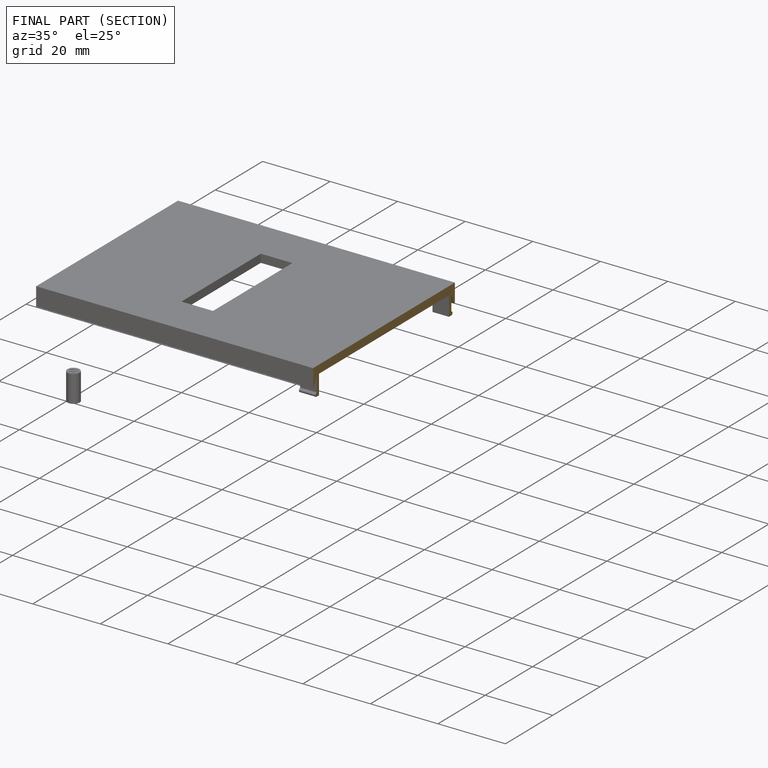
[diagram: finished part — half-section view (interior)]
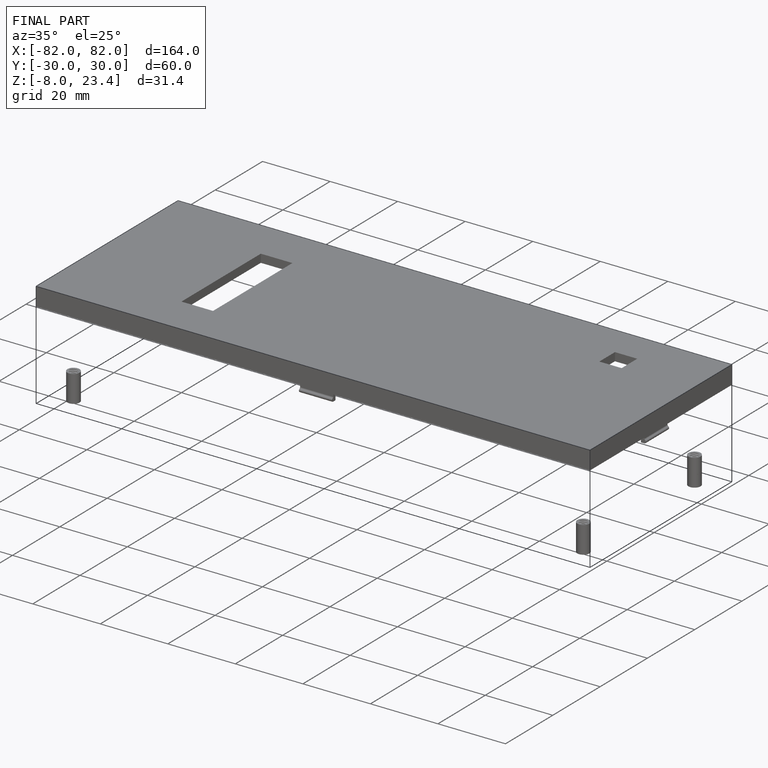
[diagram: finished part — iso view with bounding-box wireframe]
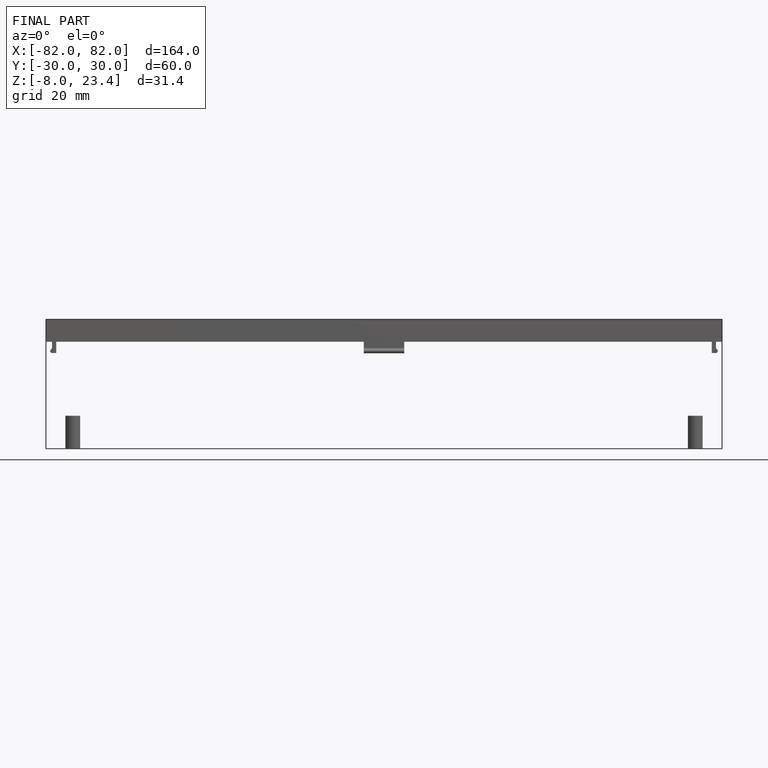
[diagram: finished part — front view with bounding-box wireframe]
